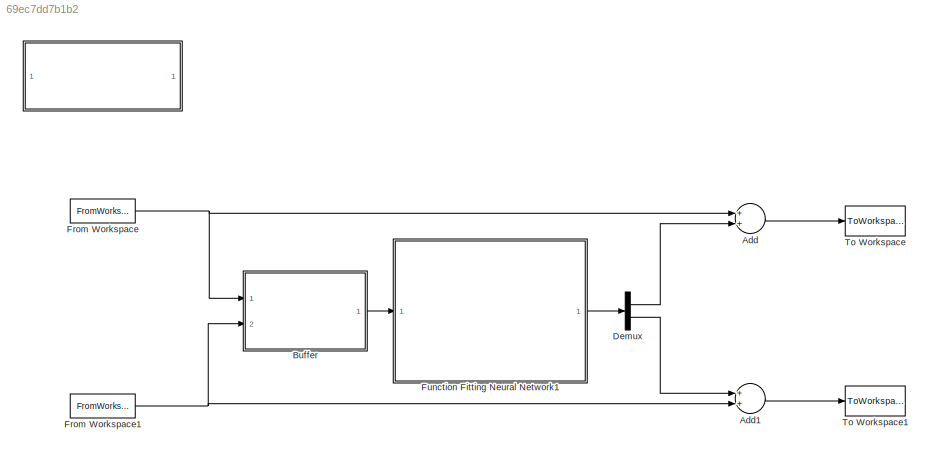
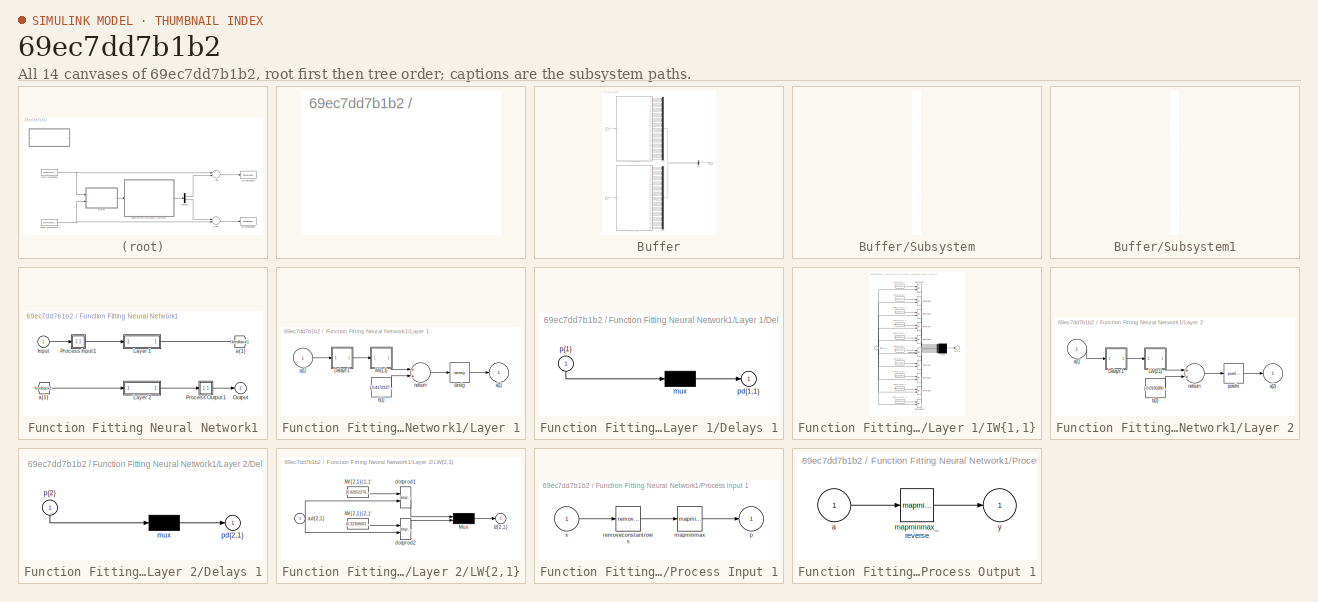
[diagram: thumbnail index - all 14 canvases of the model, root first then tree order]
MODEL slx_69ec7dd7b1b2
KIND model
CONFIG AbsTol = auto
CONFIG EnableMultiTasking = off
CONFIG FixedStep = 1
CONFIG MaxStep = auto
CONFIG MinStep = auto
CONFIG RelTol = 1e-3
CONFIG SampleTimeConstraint = Unconstrained
CONFIG Solver = FixedStepAuto
CONFIG SolverName = FixedStepAuto
CONFIG StartTime = 0.0
CONFIG StopFcn = %%\nscrsz = get(groot,'ScreenSize');\nfigure('Position',[40 scrsz(4)*0.1 scrsz(3)*0.8 scrsz(4)*0.8])\n\nlng_margin = (max(LOCATIONLongitude(indices))-min(LOCATIONLongitude(indices)))*0.01;\nlat_margin = (max(LOCATIONLatitude(indices))-min(LOCATIONLatitude(indices)))*0.01;\n\nlive_plot_title = ['Pedestrian Path Neural Network Prediction' newline ...\n    'Green Rectangle:Current Position, Cyan Rectangle:Fu...<+2148ch>
CONFIG StopTime = length(lat_y)
BLOCK [SubSystem]  
  OpenFcn = %%\n%receive the user input for the measurement file\nclear all;close all; %#ok<CLALL>\n[measurement_file, measurement_file_path] = uigetfile({'*.mat'},'Measurement File Selector');\nfilename = strcat(measurement_file_path,measurement_file); \nload(filename);\nt=0:1:length(lng_x)-1;\nsim_x = [t' lng_x];\nsim_y = [t' lat_y];
  Ports = []
  RequestExecContextInheritance = off
  Variant = off
BLOCK [Sum] Add
  InputSameDT = off
  OutDataTypeStr = Inherit: Inherit via internal rule
  Ports = [2, 1]
  SaturateOnIntegerOverflow = off
BLOCK [Sum] Add1
  InputSameDT = off
  OutDataTypeStr = Inherit: Inherit via internal rule
  Ports = [2, 1]
  SaturateOnIntegerOverflow = off
BLOCK [SubSystem] Buffer
  Ports = [2, 1]
  RequestExecContextInheritance = off
  Variant = off
BLOCK [Inport] Buffer/In_X
  IconDisplay = Port number
BLOCK [Inport] Buffer/In_Y
  IconDisplay = Port number
  Port = 2
BLOCK [Mux] Buffer/Mux
  DisplayOption = bar
  Inputs = 2
  Ports = [2, 1]
BLOCK [Mux] Buffer/Mux1
  DisplayOption = bar
  Inputs = 50
  Ports = [50, 1]
BLOCK [Mux] Buffer/Mux2
  DisplayOption = bar
  Inputs = 50
  Ports = [50, 1]
BLOCK [Outport] Buffer/Out_X
  IconDisplay = Port number
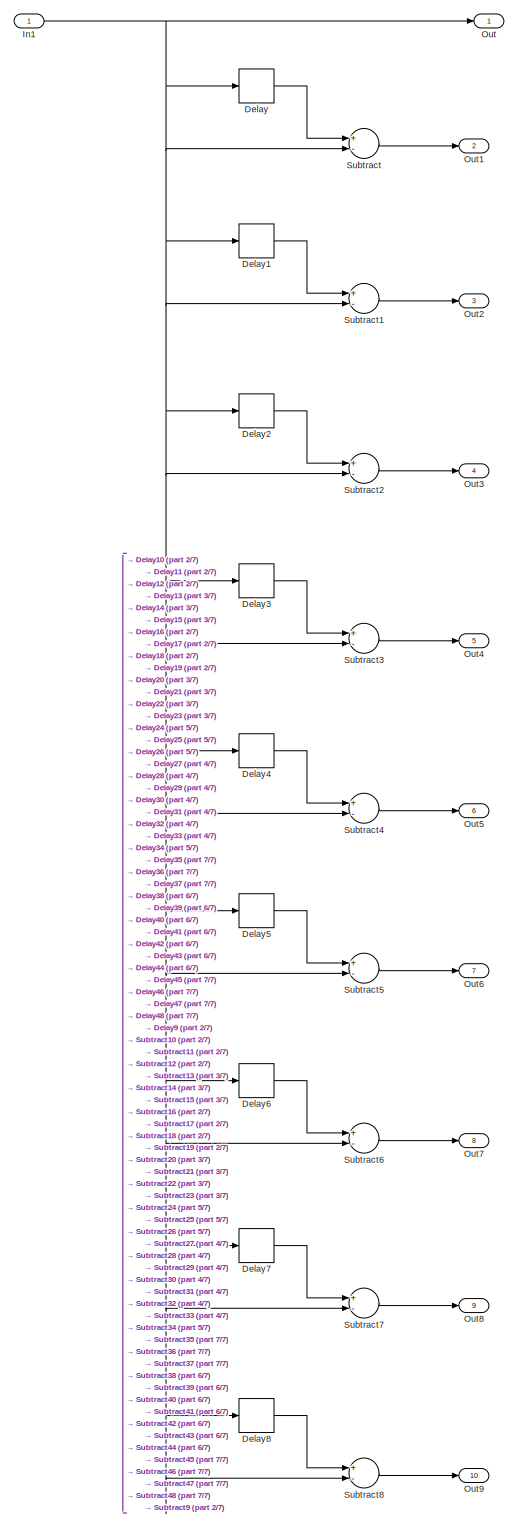
[diagram: Buffer/Subsystem - part 1/7, full width, top band]
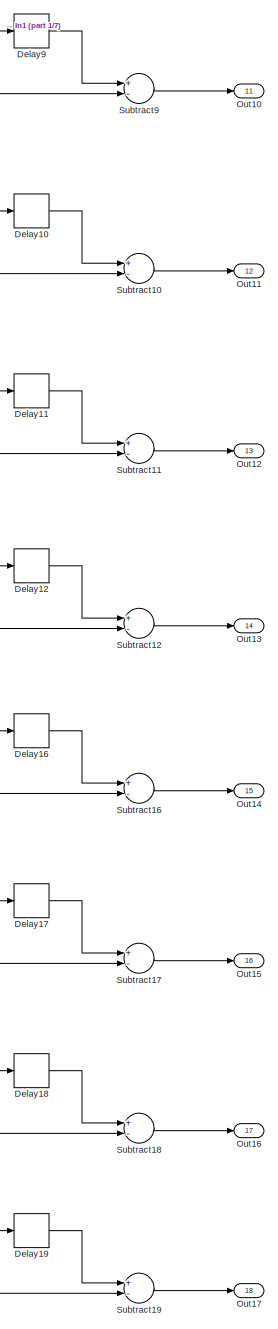
[diagram: Buffer/Subsystem - part 2/7, top right region]
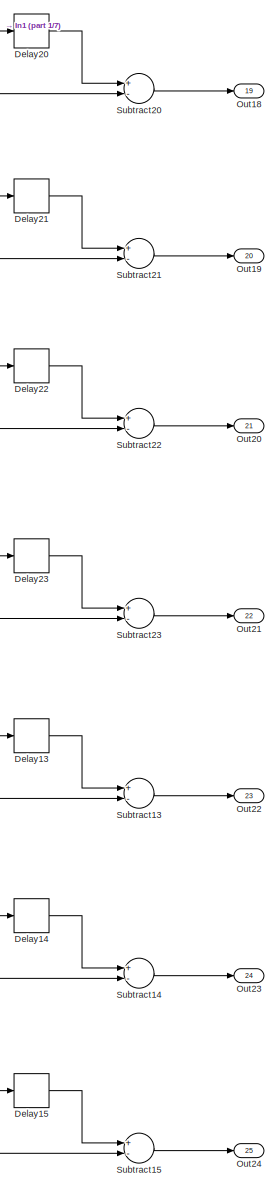
[diagram: Buffer/Subsystem - part 3/7, middle right region]
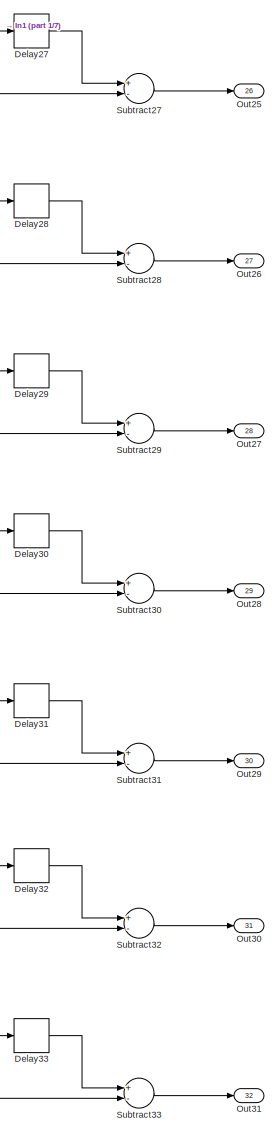
[diagram: Buffer/Subsystem - part 4/7, middle right region]
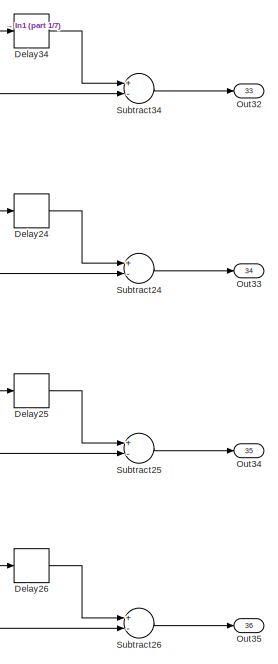
[diagram: Buffer/Subsystem - part 5/7, bottom right region]
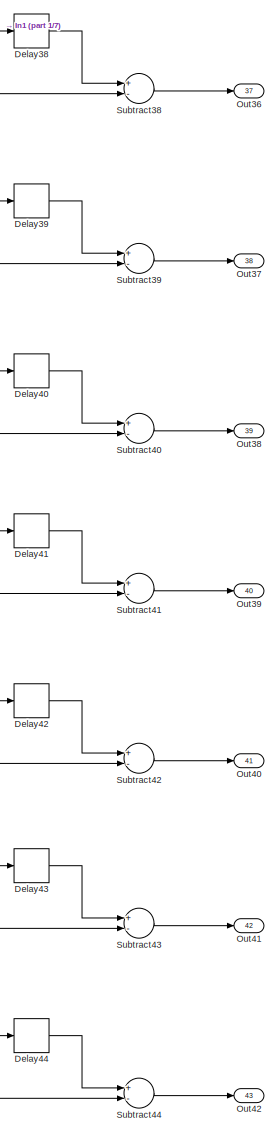
[diagram: Buffer/Subsystem - part 6/7, bottom right region]
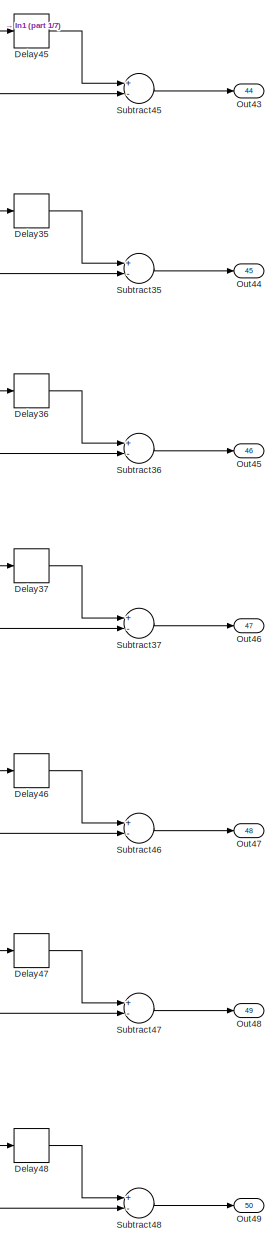
[diagram: Buffer/Subsystem - part 7/7, bottom right region]
BLOCK [SubSystem] Buffer/Subsystem
  Ports = [1, 50]
  RequestExecContextInheritance = off
  Variant = off
BLOCK [Delay] Buffer/Subsystem/Delay
  DelayLength = 1
  InputPortMap = u0
  Ports = [1, 1]
BLOCK [Delay] Buffer/Subsystem/Delay1
  InputPortMap = u0
  Ports = [1, 1]
BLOCK [Delay] Buffer/Subsystem/Delay10
  DelayLength = 11
  InputPortMap = u0
  Ports = [1, 1]
BLOCK [Delay] Buffer/Subsystem/Delay11
  DelayLength = 12
  InputPortMap = u0
  Ports = [1, 1]
BLOCK [Delay] Buffer/Subsystem/Delay12
  DelayLength = 13
  InputPortMap = u0
  Ports = [1, 1]
BLOCK [Delay] Buffer/Subsystem/Delay13
  DelayLength = 22
  InputPortMap = u0
  Ports = [1, 1]
BLOCK [Delay] Buffer/Subsystem/Delay14
  DelayLength = 23
  InputPortMap = u0
  Ports = [1, 1]
BLOCK [Delay] Buffer/Subsystem/Delay15
  DelayLength = 24
  InputPortMap = u0
  Ports = [1, 1]
BLOCK [Delay] Buffer/Subsystem/Delay16
  DelayLength = 14
  InputPortMap = u0
  Ports = [1, 1]
BLOCK [Delay] Buffer/Subsystem/Delay17
  DelayLength = 15
  InputPortMap = u0
  Ports = [1, 1]
BLOCK [Delay] Buffer/Subsystem/Delay18
  DelayLength = 16
  InputPortMap = u0
  Ports = [1, 1]
BLOCK [Delay] Buffer/Subsystem/Delay19
  DelayLength = 17
  InputPortMap = u0
  Ports = [1, 1]
BLOCK [Delay] Buffer/Subsystem/Delay2
  DelayLength = 3
  InputPortMap = u0
  Ports = [1, 1]
BLOCK [Delay] Buffer/Subsystem/Delay20
  DelayLength = 18
  InputPortMap = u0
  Ports = [1, 1]
BLOCK [Delay] Buffer/Subsystem/Delay21
  DelayLength = 19
  InputPortMap = u0
  Ports = [1, 1]
BLOCK [Delay] Buffer/Subsystem/Delay22
  DelayLength = 20
  InputPortMap = u0
  Ports = [1, 1]
BLOCK [Delay] Buffer/Subsystem/Delay23
  DelayLength = 21
  InputPortMap = u0
  Ports = [1, 1]
BLOCK [Delay] Buffer/Subsystem/Delay24
  DelayLength = 33
  InputPortMap = u0
  Ports = [1, 1]
BLOCK [Delay] Buffer/Subsystem/Delay25
  DelayLength = 34
  InputPortMap = u0
  Ports = [1, 1]
BLOCK [Delay] Buffer/Subsystem/Delay26
  DelayLength = 35
  InputPortMap = u0
  Ports = [1, 1]
BLOCK [Delay] Buffer/Subsystem/Delay27
  DelayLength = 25
  InputPortMap = u0
  Ports = [1, 1]
BLOCK [Delay] Buffer/Subsystem/Delay28
  DelayLength = 26
  InputPortMap = u0
  Ports = [1, 1]
BLOCK [Delay] Buffer/Subsystem/Delay29
  DelayLength = 27
  InputPortMap = u0
  Ports = [1, 1]
BLOCK [Delay] Buffer/Subsystem/Delay3
  DelayLength = 4
  InputPortMap = u0
  Ports = [1, 1]
BLOCK [Delay] Buffer/Subsystem/Delay30
  DelayLength = 28
  InputPortMap = u0
  Ports = [1, 1]
BLOCK [Delay] Buffer/Subsystem/Delay31
  DelayLength = 29
  InputPortMap = u0
  Ports = [1, 1]
BLOCK [Delay] Buffer/Subsystem/Delay32
  DelayLength = 30
  InputPortMap = u0
  Ports = [1, 1]
BLOCK [Delay] Buffer/Subsystem/Delay33
  DelayLength = 31
  InputPortMap = u0
  Ports = [1, 1]
BLOCK [Delay] Buffer/Subsystem/Delay34
  DelayLength = 32
  InputPortMap = u0
  Ports = [1, 1]
BLOCK [Delay] Buffer/Subsystem/Delay35
  DelayLength = 44
  InputPortMap = u0
  Ports = [1, 1]
BLOCK [Delay] Buffer/Subsystem/Delay36
  DelayLength = 45
  InputPortMap = u0
  Ports = [1, 1]
BLOCK [Delay] Buffer/Subsystem/Delay37
  DelayLength = 46
  InputPortMap = u0
  Ports = [1, 1]
BLOCK [Delay] Buffer/Subsystem/Delay38
  DelayLength = 36
  InputPortMap = u0
  Ports = [1, 1]
BLOCK [Delay] Buffer/Subsystem/Delay39
  DelayLength = 37
  InputPortMap = u0
  Ports = [1, 1]
BLOCK [Delay] Buffer/Subsystem/Delay4
  DelayLength = 5
  InputPortMap = u0
  Ports = [1, 1]
BLOCK [Delay] Buffer/Subsystem/Delay40
  DelayLength = 38
  InputPortMap = u0
  Ports = [1, 1]
BLOCK [Delay] Buffer/Subsystem/Delay41
  DelayLength = 39
  InputPortMap = u0
  Ports = [1, 1]
BLOCK [Delay] Buffer/Subsystem/Delay42
  DelayLength = 40
  InputPortMap = u0
  Ports = [1, 1]
BLOCK [Delay] Buffer/Subsystem/Delay43
  DelayLength = 41
  InputPortMap = u0
  Ports = [1, 1]
BLOCK [Delay] Buffer/Subsystem/Delay44
  DelayLength = 42
  InputPortMap = u0
  Ports = [1, 1]
BLOCK [Delay] Buffer/Subsystem/Delay45
  DelayLength = 43
  InputPortMap = u0
  Ports = [1, 1]
BLOCK [Delay] Buffer/Subsystem/Delay46
  DelayLength = 47
  InputPortMap = u0
  Ports = [1, 1]
BLOCK [Delay] Buffer/Subsystem/Delay47
  DelayLength = 48
  InputPortMap = u0
  Ports = [1, 1]
BLOCK [Delay] Buffer/Subsystem/Delay48
  DelayLength = 49
  InputPortMap = u0
  Ports = [1, 1]
BLOCK [Delay] Buffer/Subsystem/Delay5
  DelayLength = 6
  InputPortMap = u0
  Ports = [1, 1]
BLOCK [Delay] Buffer/Subsystem/Delay6
  DelayLength = 7
  InputPortMap = u0
  Ports = [1, 1]
BLOCK [Delay] Buffer/Subsystem/Delay7
  DelayLength = 8
  InputPortMap = u0
  Ports = [1, 1]
BLOCK [Delay] Buffer/Subsystem/Delay8
  DelayLength = 9
  InputPortMap = u0
  Ports = [1, 1]
BLOCK [Delay] Buffer/Subsystem/Delay9
  DelayLength = 10
  InputPortMap = u0
  Ports = [1, 1]
BLOCK [Inport] Buffer/Subsystem/In1
  IconDisplay = Port number
BLOCK [Outport] Buffer/Subsystem/Out
  IconDisplay = Port number
BLOCK [Outport] Buffer/Subsystem/Out1
  IconDisplay = Port number
  Port = 2
BLOCK [Outport] Buffer/Subsystem/Out10
  IconDisplay = Port number
  Port = 11
BLOCK [Outport] Buffer/Subsystem/Out11
  IconDisplay = Port number
  Port = 12
BLOCK [Outport] Buffer/Subsystem/Out12
  IconDisplay = Port number
  Port = 13
BLOCK [Outport] Buffer/Subsystem/Out13
  IconDisplay = Port number
  Port = 14
BLOCK [Outport] Buffer/Subsystem/Out14
  IconDisplay = Port number
  Port = 15
BLOCK [Outport] Buffer/Subsystem/Out15
  IconDisplay = Port number
  Port = 16
BLOCK [Outport] Buffer/Subsystem/Out16
  IconDisplay = Port number
  Port = 17
BLOCK [Outport] Buffer/Subsystem/Out17
  IconDisplay = Port number
  Port = 18
BLOCK [Outport] Buffer/Subsystem/Out18
  IconDisplay = Port number
  Port = 19
BLOCK [Outport] Buffer/Subsystem/Out19
  IconDisplay = Port number
  Port = 20
BLOCK [Outport] Buffer/Subsystem/Out2
  IconDisplay = Port number
  Port = 3
BLOCK [Outport] Buffer/Subsystem/Out20
  IconDisplay = Port number
  Port = 21
BLOCK [Outport] Buffer/Subsystem/Out21
  IconDisplay = Port number
  Port = 22
BLOCK [Outport] Buffer/Subsystem/Out22
  IconDisplay = Port number
  Port = 23
BLOCK [Outport] Buffer/Subsystem/Out23
  IconDisplay = Port number
  Port = 24
BLOCK [Outport] Buffer/Subsystem/Out24
  IconDisplay = Port number
  Port = 25
BLOCK [Outport] Buffer/Subsystem/Out25
  IconDisplay = Port number
  Port = 26
BLOCK [Outport] Buffer/Subsystem/Out26
  IconDisplay = Port number
  Port = 27
BLOCK [Outport] Buffer/Subsystem/Out27
  IconDisplay = Port number
  Port = 28
BLOCK [Outport] Buffer/Subsystem/Out28
  IconDisplay = Port number
  Port = 29
BLOCK [Outport] Buffer/Subsystem/Out29
  IconDisplay = Port number
  Port = 30
BLOCK [Outport] Buffer/Subsystem/Out3
  IconDisplay = Port number
  Port = 4
BLOCK [Outport] Buffer/Subsystem/Out30
  IconDisplay = Port number
  Port = 31
BLOCK [Outport] Buffer/Subsystem/Out31
  IconDisplay = Port number
  Port = 32
BLOCK [Outport] Buffer/Subsystem/Out32
  IconDisplay = Port number
  Port = 33
BLOCK [Outport] Buffer/Subsystem/Out33
  IconDisplay = Port number
  Port = 34
BLOCK [Outport] Buffer/Subsystem/Out34
  IconDisplay = Port number
  Port = 35
BLOCK [Outport] Buffer/Subsystem/Out35
  IconDisplay = Port number
  Port = 36
BLOCK [Outport] Buffer/Subsystem/Out36
  IconDisplay = Port number
  Port = 37
BLOCK [Outport] Buffer/Subsystem/Out37
  IconDisplay = Port number
  Port = 38
BLOCK [Outport] Buffer/Subsystem/Out38
  IconDisplay = Port number
  Port = 39
BLOCK [Outport] Buffer/Subsystem/Out39
  IconDisplay = Port number
  Port = 40
BLOCK [Outport] Buffer/Subsystem/Out4
  IconDisplay = Port number
  Port = 5
BLOCK [Outport] Buffer/Subsystem/Out40
  IconDisplay = Port number
  Port = 41
BLOCK [Outport] Buffer/Subsystem/Out41
  IconDisplay = Port number
  Port = 42
BLOCK [Outport] Buffer/Subsystem/Out42
  IconDisplay = Port number
  Port = 43
BLOCK [Outport] Buffer/Subsystem/Out43
  IconDisplay = Port number
  Port = 44
BLOCK [Outport] Buffer/Subsystem/Out44
  IconDisplay = Port number
  Port = 45
BLOCK [Outport] Buffer/Subsystem/Out45
  IconDisplay = Port number
  Port = 46
BLOCK [Outport] Buffer/Subsystem/Out46
  IconDisplay = Port number
  Port = 47
BLOCK [Outport] Buffer/Subsystem/Out47
  IconDisplay = Port number
  Port = 48
BLOCK [Outport] Buffer/Subsystem/Out48
  IconDisplay = Port number
  Port = 49
BLOCK [Outport] Buffer/Subsystem/Out49
  IconDisplay = Port number
  Port = 50
BLOCK [Outport] Buffer/Subsystem/Out5
  IconDisplay = Port number
  Port = 6
BLOCK [Outport] Buffer/Subsystem/Out6
  IconDisplay = Port number
  Port = 7
BLOCK [Outport] Buffer/Subsystem/Out7
  IconDisplay = Port number
  Port = 8
BLOCK [Outport] Buffer/Subsystem/Out8
  IconDisplay = Port number
  Port = 9
BLOCK [Outport] Buffer/Subsystem/Out9
  IconDisplay = Port number
  Port = 10
BLOCK [Sum] Buffer/Subsystem/Subtract
  InputSameDT = off
  Inputs = +-
  OutDataTypeStr = Inherit: Inherit via internal rule
  Ports = [2, 1]
  SaturateOnIntegerOverflow = off
BLOCK [Sum] Buffer/Subsystem/Subtract1
  InputSameDT = off
  Inputs = +-
  OutDataTypeStr = Inherit: Inherit via internal rule
  Ports = [2, 1]
  SaturateOnIntegerOverflow = off
BLOCK [Sum] Buffer/Subsystem/Subtract10
  InputSameDT = off
  Inputs = +-
  OutDataTypeStr = Inherit: Inherit via internal rule
  Ports = [2, 1]
  SaturateOnIntegerOverflow = off
BLOCK [Sum] Buffer/Subsystem/Subtract11
  InputSameDT = off
  Inputs = +-
  OutDataTypeStr = Inherit: Inherit via internal rule
  Ports = [2, 1]
  SaturateOnIntegerOverflow = off
BLOCK [Sum] Buffer/Subsystem/Subtract12
  InputSameDT = off
  Inputs = +-
  OutDataTypeStr = Inherit: Inherit via internal rule
  Ports = [2, 1]
  SaturateOnIntegerOverflow = off
BLOCK [Sum] Buffer/Subsystem/Subtract13
  InputSameDT = off
  Inputs = +-
  OutDataTypeStr = Inherit: Inherit via internal rule
  Ports = [2, 1]
  SaturateOnIntegerOverflow = off
BLOCK [Sum] Buffer/Subsystem/Subtract14
  InputSameDT = off
  Inputs = +-
  OutDataTypeStr = Inherit: Inherit via internal rule
  Ports = [2, 1]
  SaturateOnIntegerOverflow = off
BLOCK [Sum] Buffer/Subsystem/Subtract15
  InputSameDT = off
  Inputs = +-
  OutDataTypeStr = Inherit: Inherit via internal rule
  Ports = [2, 1]
  SaturateOnIntegerOverflow = off
BLOCK [Sum] Buffer/Subsystem/Subtract16
  InputSameDT = off
  Inputs = +-
  OutDataTypeStr = Inherit: Inherit via internal rule
  Ports = [2, 1]
  SaturateOnIntegerOverflow = off
BLOCK [Sum] Buffer/Subsystem/Subtract17
  InputSameDT = off
  Inputs = +-
  OutDataTypeStr = Inherit: Inherit via internal rule
  Ports = [2, 1]
  SaturateOnIntegerOverflow = off
BLOCK [Sum] Buffer/Subsystem/Subtract18
  InputSameDT = off
  Inputs = +-
  OutDataTypeStr = Inherit: Inherit via internal rule
  Ports = [2, 1]
  SaturateOnIntegerOverflow = off
BLOCK [Sum] Buffer/Subsystem/Subtract19
  InputSameDT = off
  Inputs = +-
  OutDataTypeStr = Inherit: Inherit via internal rule
  Ports = [2, 1]
  SaturateOnIntegerOverflow = off
BLOCK [Sum] Buffer/Subsystem/Subtract2
  InputSameDT = off
  Inputs = +-
  OutDataTypeStr = Inherit: Inherit via internal rule
  Ports = [2, 1]
  SaturateOnIntegerOverflow = off
BLOCK [Sum] Buffer/Subsystem/Subtract20
  InputSameDT = off
  Inputs = +-
  OutDataTypeStr = Inherit: Inherit via internal rule
  Ports = [2, 1]
  SaturateOnIntegerOverflow = off
BLOCK [Sum] Buffer/Subsystem/Subtract21
  InputSameDT = off
  Inputs = +-
  OutDataTypeStr = Inherit: Inherit via internal rule
  Ports = [2, 1]
  SaturateOnIntegerOverflow = off
BLOCK [Sum] Buffer/Subsystem/Subtract22
  InputSameDT = off
  Inputs = +-
  OutDataTypeStr = Inherit: Inherit via internal rule
  Ports = [2, 1]
  SaturateOnIntegerOverflow = off
BLOCK [Sum] Buffer/Subsystem/Subtract23
  InputSameDT = off
  Inputs = +-
  OutDataTypeStr = Inherit: Inherit via internal rule
  Ports = [2, 1]
  SaturateOnIntegerOverflow = off
BLOCK [Sum] Buffer/Subsystem/Subtract24
  InputSameDT = off
  Inputs = +-
  OutDataTypeStr = Inherit: Inherit via internal rule
  Ports = [2, 1]
  SaturateOnIntegerOverflow = off
BLOCK [Sum] Buffer/Subsystem/Subtract25
  InputSameDT = off
  Inputs = +-
  OutDataTypeStr = Inherit: Inherit via internal rule
  Ports = [2, 1]
  SaturateOnIntegerOverflow = off
BLOCK [Sum] Buffer/Subsystem/Subtract26
  InputSameDT = off
  Inputs = +-
  OutDataTypeStr = Inherit: Inherit via internal rule
  Ports = [2, 1]
  SaturateOnIntegerOverflow = off
BLOCK [Sum] Buffer/Subsystem/Subtract27
  InputSameDT = off
  Inputs = +-
  OutDataTypeStr = Inherit: Inherit via internal rule
  Ports = [2, 1]
  SaturateOnIntegerOverflow = off
BLOCK [Sum] Buffer/Subsystem/Subtract28
  InputSameDT = off
  Inputs = +-
  OutDataTypeStr = Inherit: Inherit via internal rule
  Ports = [2, 1]
  SaturateOnIntegerOverflow = off
BLOCK [Sum] Buffer/Subsystem/Subtract29
  InputSameDT = off
  Inputs = +-
  OutDataTypeStr = Inherit: Inherit via internal rule
  Ports = [2, 1]
  SaturateOnIntegerOverflow = off
BLOCK [Sum] Buffer/Subsystem/Subtract3
  InputSameDT = off
  Inputs = +-
  OutDataTypeStr = Inherit: Inherit via internal rule
  Ports = [2, 1]
  SaturateOnIntegerOverflow = off
BLOCK [Sum] Buffer/Subsystem/Subtract30
  InputSameDT = off
  Inputs = +-
  OutDataTypeStr = Inherit: Inherit via internal rule
  Ports = [2, 1]
  SaturateOnIntegerOverflow = off
BLOCK [Sum] Buffer/Subsystem/Subtract31
  InputSameDT = off
  Inputs = +-
  OutDataTypeStr = Inherit: Inherit via internal rule
  Ports = [2, 1]
  SaturateOnIntegerOverflow = off
BLOCK [Sum] Buffer/Subsystem/Subtract32
  InputSameDT = off
  Inputs = +-
  OutDataTypeStr = Inherit: Inherit via internal rule
  Ports = [2, 1]
  SaturateOnIntegerOverflow = off
BLOCK [Sum] Buffer/Subsystem/Subtract33
  InputSameDT = off
  Inputs = +-
  OutDataTypeStr = Inherit: Inherit via internal rule
  Ports = [2, 1]
  SaturateOnIntegerOverflow = off
BLOCK [Sum] Buffer/Subsystem/Subtract34
  InputSameDT = off
  Inputs = +-
  OutDataTypeStr = Inherit: Inherit via internal rule
  Ports = [2, 1]
  SaturateOnIntegerOverflow = off
BLOCK [Sum] Buffer/Subsystem/Subtract35
  InputSameDT = off
  Inputs = +-
  OutDataTypeStr = Inherit: Inherit via internal rule
  Ports = [2, 1]
  SaturateOnIntegerOverflow = off
BLOCK [Sum] Buffer/Subsystem/Subtract36
  InputSameDT = off
  Inputs = +-
  OutDataTypeStr = Inherit: Inherit via internal rule
  Ports = [2, 1]
  SaturateOnIntegerOverflow = off
BLOCK [Sum] Buffer/Subsystem/Subtract37
  InputSameDT = off
  Inputs = +-
  OutDataTypeStr = Inherit: Inherit via internal rule
  Ports = [2, 1]
  SaturateOnIntegerOverflow = off
BLOCK [Sum] Buffer/Subsystem/Subtract38
  InputSameDT = off
  Inputs = +-
  OutDataTypeStr = Inherit: Inherit via internal rule
  Ports = [2, 1]
  SaturateOnIntegerOverflow = off
BLOCK [Sum] Buffer/Subsystem/Subtract39
  InputSameDT = off
  Inputs = +-
  OutDataTypeStr = Inherit: Inherit via internal rule
  Ports = [2, 1]
  SaturateOnIntegerOverflow = off
BLOCK [Sum] Buffer/Subsystem/Subtract4
  InputSameDT = off
  Inputs = +-
  OutDataTypeStr = Inherit: Inherit via internal rule
  Ports = [2, 1]
  SaturateOnIntegerOverflow = off
BLOCK [Sum] Buffer/Subsystem/Subtract40
  InputSameDT = off
  Inputs = +-
  OutDataTypeStr = Inherit: Inherit via internal rule
  Ports = [2, 1]
  SaturateOnIntegerOverflow = off
BLOCK [Sum] Buffer/Subsystem/Subtract41
  InputSameDT = off
  Inputs = +-
  OutDataTypeStr = Inherit: Inherit via internal rule
  Ports = [2, 1]
  SaturateOnIntegerOverflow = off
BLOCK [Sum] Buffer/Subsystem/Subtract42
  InputSameDT = off
  Inputs = +-
  OutDataTypeStr = Inherit: Inherit via internal rule
  Ports = [2, 1]
  SaturateOnIntegerOverflow = off
BLOCK [Sum] Buffer/Subsystem/Subtract43
  InputSameDT = off
  Inputs = +-
  OutDataTypeStr = Inherit: Inherit via internal rule
  Ports = [2, 1]
  SaturateOnIntegerOverflow = off
BLOCK [Sum] Buffer/Subsystem/Subtract44
  InputSameDT = off
  Inputs = +-
  OutDataTypeStr = Inherit: Inherit via internal rule
  Ports = [2, 1]
  SaturateOnIntegerOverflow = off
BLOCK [Sum] Buffer/Subsystem/Subtract45
  InputSameDT = off
  Inputs = +-
  OutDataTypeStr = Inherit: Inherit via internal rule
  Ports = [2, 1]
  SaturateOnIntegerOverflow = off
BLOCK [Sum] Buffer/Subsystem/Subtract46
  InputSameDT = off
  Inputs = +-
  OutDataTypeStr = Inherit: Inherit via internal rule
  Ports = [2, 1]
  SaturateOnIntegerOverflow = off
BLOCK [Sum] Buffer/Subsystem/Subtract47
  InputSameDT = off
  Inputs = +-
  OutDataTypeStr = Inherit: Inherit via internal rule
  Ports = [2, 1]
  SaturateOnIntegerOverflow = off
BLOCK [Sum] Buffer/Subsystem/Subtract48
  InputSameDT = off
  Inputs = +-
  OutDataTypeStr = Inherit: Inherit via internal rule
  Ports = [2, 1]
  SaturateOnIntegerOverflow = off
BLOCK [Sum] Buffer/Subsystem/Subtract5
  InputSameDT = off
  Inputs = +-
  OutDataTypeStr = Inherit: Inherit via internal rule
  Ports = [2, 1]
  SaturateOnIntegerOverflow = off
BLOCK [Sum] Buffer/Subsystem/Subtract6
  InputSameDT = off
  Inputs = +-
  OutDataTypeStr = Inherit: Inherit via internal rule
  Ports = [2, 1]
  SaturateOnIntegerOverflow = off
BLOCK [Sum] Buffer/Subsystem/Subtract7
  InputSameDT = off
  Inputs = +-
  OutDataTypeStr = Inherit: Inherit via internal rule
  Ports = [2, 1]
  SaturateOnIntegerOverflow = off
BLOCK [Sum] Buffer/Subsystem/Subtract8
  InputSameDT = off
  Inputs = +-
  OutDataTypeStr = Inherit: Inherit via internal rule
  Ports = [2, 1]
  SaturateOnIntegerOverflow = off
BLOCK [Sum] Buffer/Subsystem/Subtract9
  InputSameDT = off
  Inputs = +-
  OutDataTypeStr = Inherit: Inherit via internal rule
  Ports = [2, 1]
  SaturateOnIntegerOverflow = off
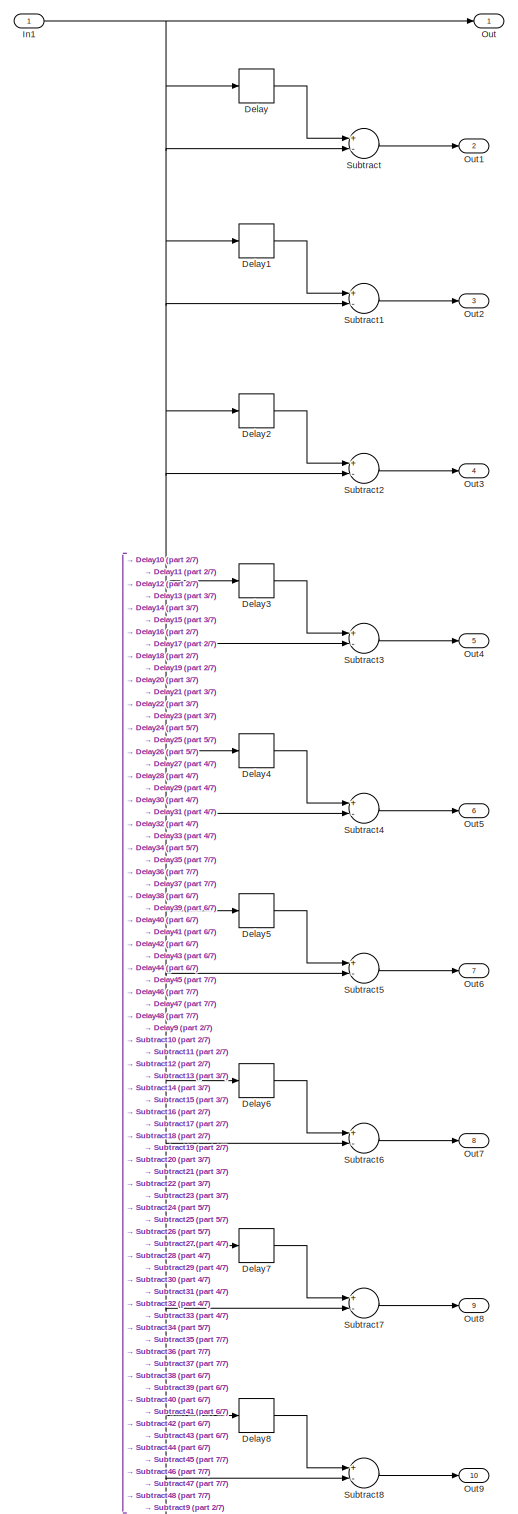
[diagram: Buffer/Subsystem1 - part 1/7, full width, top band]
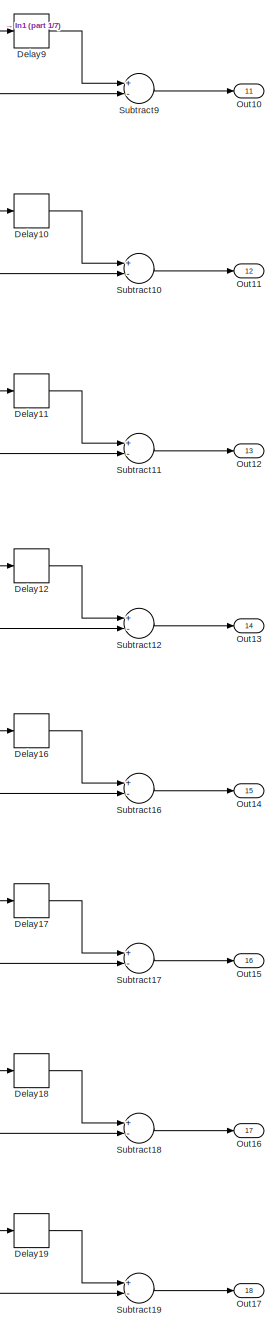
[diagram: Buffer/Subsystem1 - part 2/7, top right region]
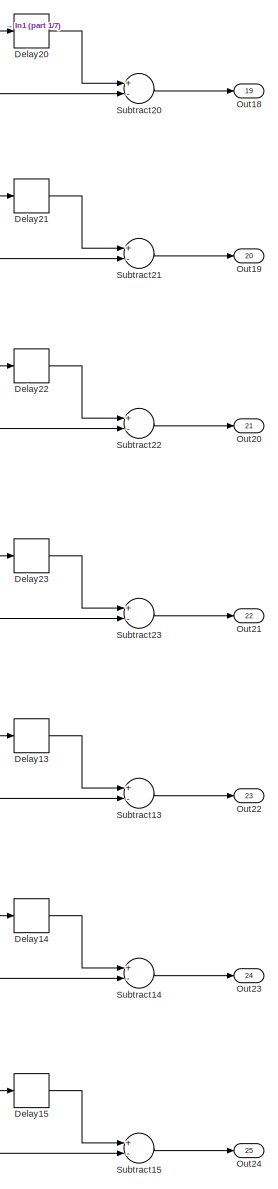
[diagram: Buffer/Subsystem1 - part 3/7, middle right region]
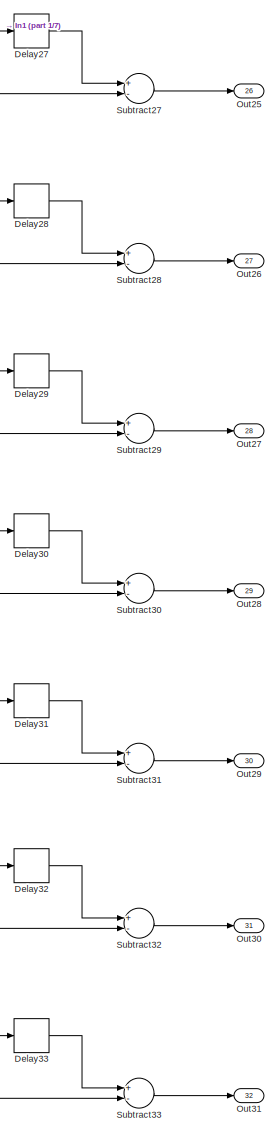
[diagram: Buffer/Subsystem1 - part 4/7, middle right region]
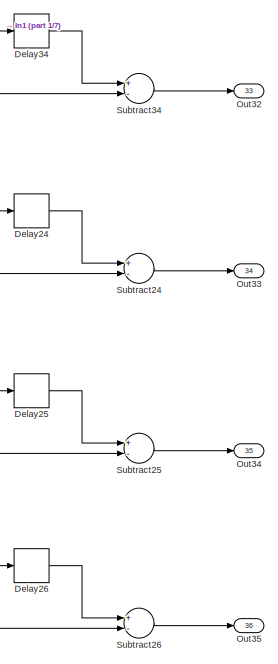
[diagram: Buffer/Subsystem1 - part 5/7, bottom right region]
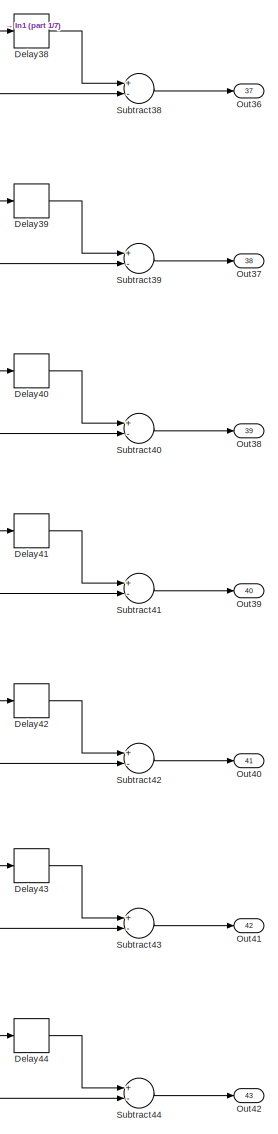
[diagram: Buffer/Subsystem1 - part 6/7, bottom right region]
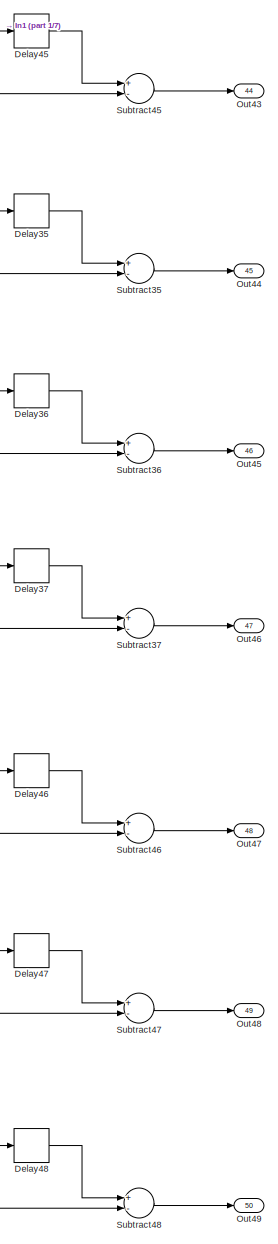
[diagram: Buffer/Subsystem1 - part 7/7, bottom right region]
BLOCK [SubSystem] Buffer/Subsystem1
  Ports = [1, 50]
  RequestExecContextInheritance = off
  Variant = off
BLOCK [Delay] Buffer/Subsystem1/Delay
  DelayLength = 1
  InputPortMap = u0
  Ports = [1, 1]
BLOCK [Delay] Buffer/Subsystem1/Delay1
  InputPortMap = u0
  Ports = [1, 1]
BLOCK [Delay] Buffer/Subsystem1/Delay10
  DelayLength = 11
  InputPortMap = u0
  Ports = [1, 1]
BLOCK [Delay] Buffer/Subsystem1/Delay11
  DelayLength = 12
  InputPortMap = u0
  Ports = [1, 1]
BLOCK [Delay] Buffer/Subsystem1/Delay12
  DelayLength = 13
  InputPortMap = u0
  Ports = [1, 1]
BLOCK [Delay] Buffer/Subsystem1/Delay13
  DelayLength = 22
  InputPortMap = u0
  Ports = [1, 1]
BLOCK [Delay] Buffer/Subsystem1/Delay14
  DelayLength = 23
  InputPortMap = u0
  Ports = [1, 1]
BLOCK [Delay] Buffer/Subsystem1/Delay15
  DelayLength = 24
  InputPortMap = u0
  Ports = [1, 1]
BLOCK [Delay] Buffer/Subsystem1/Delay16
  DelayLength = 14
  InputPortMap = u0
  Ports = [1, 1]
BLOCK [Delay] Buffer/Subsystem1/Delay17
  DelayLength = 15
  InputPortMap = u0
  Ports = [1, 1]
BLOCK [Delay] Buffer/Subsystem1/Delay18
  DelayLength = 16
  InputPortMap = u0
  Ports = [1, 1]
BLOCK [Delay] Buffer/Subsystem1/Delay19
  DelayLength = 17
  InputPortMap = u0
  Ports = [1, 1]
BLOCK [Delay] Buffer/Subsystem1/Delay2
  DelayLength = 3
  InputPortMap = u0
  Ports = [1, 1]
BLOCK [Delay] Buffer/Subsystem1/Delay20
  DelayLength = 18
  InputPortMap = u0
  Ports = [1, 1]
BLOCK [Delay] Buffer/Subsystem1/Delay21
  DelayLength = 19
  InputPortMap = u0
  Ports = [1, 1]
BLOCK [Delay] Buffer/Subsystem1/Delay22
  DelayLength = 20
  InputPortMap = u0
  Ports = [1, 1]
BLOCK [Delay] Buffer/Subsystem1/Delay23
  DelayLength = 21
  InputPortMap = u0
  Ports = [1, 1]
BLOCK [Delay] Buffer/Subsystem1/Delay24
  DelayLength = 33
  InputPortMap = u0
  Ports = [1, 1]
BLOCK [Delay] Buffer/Subsystem1/Delay25
  DelayLength = 34
  InputPortMap = u0
  Ports = [1, 1]
BLOCK [Delay] Buffer/Subsystem1/Delay26
  DelayLength = 35
  InputPortMap = u0
  Ports = [1, 1]
BLOCK [Delay] Buffer/Subsystem1/Delay27
  DelayLength = 25
  InputPortMap = u0
  Ports = [1, 1]
BLOCK [Delay] Buffer/Subsystem1/Delay28
  DelayLength = 26
  InputPortMap = u0
  Ports = [1, 1]
BLOCK [Delay] Buffer/Subsystem1/Delay29
  DelayLength = 27
  InputPortMap = u0
  Ports = [1, 1]
BLOCK [Delay] Buffer/Subsystem1/Delay3
  DelayLength = 4
  InputPortMap = u0
  Ports = [1, 1]
BLOCK [Delay] Buffer/Subsystem1/Delay30
  DelayLength = 28
  InputPortMap = u0
  Ports = [1, 1]
BLOCK [Delay] Buffer/Subsystem1/Delay31
  DelayLength = 29
  InputPortMap = u0
  Ports = [1, 1]
BLOCK [Delay] Buffer/Subsystem1/Delay32
  DelayLength = 30
  InputPortMap = u0
  Ports = [1, 1]
BLOCK [Delay] Buffer/Subsystem1/Delay33
  DelayLength = 31
  InputPortMap = u0
  Ports = [1, 1]
BLOCK [Delay] Buffer/Subsystem1/Delay34
  DelayLength = 32
  InputPortMap = u0
  Ports = [1, 1]
BLOCK [Delay] Buffer/Subsystem1/Delay35
  DelayLength = 44
  InputPortMap = u0
  Ports = [1, 1]
BLOCK [Delay] Buffer/Subsystem1/Delay36
  DelayLength = 45
  InputPortMap = u0
  Ports = [1, 1]
BLOCK [Delay] Buffer/Subsystem1/Delay37
  DelayLength = 46
  InputPortMap = u0
  Ports = [1, 1]
BLOCK [Delay] Buffer/Subsystem1/Delay38
  DelayLength = 36
  InputPortMap = u0
  Ports = [1, 1]
BLOCK [Delay] Buffer/Subsystem1/Delay39
  DelayLength = 37
  InputPortMap = u0
  Ports = [1, 1]
BLOCK [Delay] Buffer/Subsystem1/Delay4
  DelayLength = 5
  InputPortMap = u0
  Ports = [1, 1]
BLOCK [Delay] Buffer/Subsystem1/Delay40
  DelayLength = 38
  InputPortMap = u0
  Ports = [1, 1]
BLOCK [Delay] Buffer/Subsystem1/Delay41
  DelayLength = 39
  InputPortMap = u0
  Ports = [1, 1]
BLOCK [Delay] Buffer/Subsystem1/Delay42
  DelayLength = 40
  InputPortMap = u0
  Ports = [1, 1]
BLOCK [Delay] Buffer/Subsystem1/Delay43
  DelayLength = 41
  InputPortMap = u0
  Ports = [1, 1]
BLOCK [Delay] Buffer/Subsystem1/Delay44
  DelayLength = 42
  InputPortMap = u0
  Ports = [1, 1]
BLOCK [Delay] Buffer/Subsystem1/Delay45
  DelayLength = 43
  InputPortMap = u0
  Ports = [1, 1]
BLOCK [Delay] Buffer/Subsystem1/Delay46
  DelayLength = 47
  InputPortMap = u0
  Ports = [1, 1]
BLOCK [Delay] Buffer/Subsystem1/Delay47
  DelayLength = 48
  InputPortMap = u0
  Ports = [1, 1]
BLOCK [Delay] Buffer/Subsystem1/Delay48
  DelayLength = 49
  InputPortMap = u0
  Ports = [1, 1]
BLOCK [Delay] Buffer/Subsystem1/Delay5
  DelayLength = 6
  InputPortMap = u0
  Ports = [1, 1]
BLOCK [Delay] Buffer/Subsystem1/Delay6
  DelayLength = 7
  InputPortMap = u0
  Ports = [1, 1]
BLOCK [Delay] Buffer/Subsystem1/Delay7
  DelayLength = 8
  InputPortMap = u0
  Ports = [1, 1]
BLOCK [Delay] Buffer/Subsystem1/Delay8
  DelayLength = 9
  InputPortMap = u0
  Ports = [1, 1]
BLOCK [Delay] Buffer/Subsystem1/Delay9
  DelayLength = 10
  InputPortMap = u0
  Ports = [1, 1]
BLOCK [Inport] Buffer/Subsystem1/In1
  IconDisplay = Port number
BLOCK [Outport] Buffer/Subsystem1/Out
  IconDisplay = Port number
BLOCK [Outport] Buffer/Subsystem1/Out1
  IconDisplay = Port number
  Port = 2
BLOCK [Outport] Buffer/Subsystem1/Out10
  IconDisplay = Port number
  Port = 11
BLOCK [Outport] Buffer/Subsystem1/Out11
  IconDisplay = Port number
  Port = 12
BLOCK [Outport] Buffer/Subsystem1/Out12
  IconDisplay = Port number
  Port = 13
BLOCK [Outport] Buffer/Subsystem1/Out13
  IconDisplay = Port number
  Port = 14
BLOCK [Outport] Buffer/Subsystem1/Out14
  IconDisplay = Port number
  Port = 15
BLOCK [Outport] Buffer/Subsystem1/Out15
  IconDisplay = Port number
  Port = 16
BLOCK [Outport] Buffer/Subsystem1/Out16
  IconDisplay = Port number
  Port = 17
BLOCK [Outport] Buffer/Subsystem1/Out17
  IconDisplay = Port number
  Port = 18
BLOCK [Outport] Buffer/Subsystem1/Out18
  IconDisplay = Port number
  Port = 19
BLOCK [Outport] Buffer/Subsystem1/Out19
  IconDisplay = Port number
  Port = 20
BLOCK [Outport] Buffer/Subsystem1/Out2
  IconDisplay = Port number
  Port = 3
BLOCK [Outport] Buffer/Subsystem1/Out20
  IconDisplay = Port number
  Port = 21
BLOCK [Outport] Buffer/Subsystem1/Out21
  IconDisplay = Port number
  Port = 22
BLOCK [Outport] Buffer/Subsystem1/Out22
  IconDisplay = Port number
  Port = 23
BLOCK [Outport] Buffer/Subsystem1/Out23
  IconDisplay = Port number
  Port = 24
BLOCK [Outport] Buffer/Subsystem1/Out24
  IconDisplay = Port number
  Port = 25
BLOCK [Outport] Buffer/Subsystem1/Out25
  IconDisplay = Port number
  Port = 26
BLOCK [Outport] Buffer/Subsystem1/Out26
  IconDisplay = Port number
  Port = 27
BLOCK [Outport] Buffer/Subsystem1/Out27
  IconDisplay = Port number
  Port = 28
BLOCK [Outport] Buffer/Subsystem1/Out28
  IconDisplay = Port number
  Port = 29
BLOCK [Outport] Buffer/Subsystem1/Out29
  IconDisplay = Port number
  Port = 30
BLOCK [Outport] Buffer/Subsystem1/Out3
  IconDisplay = Port number
  Port = 4
BLOCK [Outport] Buffer/Subsystem1/Out30
  IconDisplay = Port number
  Port = 31
BLOCK [Outport] Buffer/Subsystem1/Out31
  IconDisplay = Port number
  Port = 32
BLOCK [Outport] Buffer/Subsystem1/Out32
  IconDisplay = Port number
  Port = 33
BLOCK [Outport] Buffer/Subsystem1/Out33
  IconDisplay = Port number
  Port = 34
BLOCK [Outport] Buffer/Subsystem1/Out34
  IconDisplay = Port number
  Port = 35
BLOCK [Outport] Buffer/Subsystem1/Out35
  IconDisplay = Port number
  Port = 36
BLOCK [Outport] Buffer/Subsystem1/Out36
  IconDisplay = Port number
  Port = 37
BLOCK [Outport] Buffer/Subsystem1/Out37
  IconDisplay = Port number
  Port = 38
BLOCK [Outport] Buffer/Subsystem1/Out38
  IconDisplay = Port number
  Port = 39
BLOCK [Outport] Buffer/Subsystem1/Out39
  IconDisplay = Port number
  Port = 40
BLOCK [Outport] Buffer/Subsystem1/Out4
  IconDisplay = Port number
  Port = 5
BLOCK [Outport] Buffer/Subsystem1/Out40
  IconDisplay = Port number
  Port = 41
BLOCK [Outport] Buffer/Subsystem1/Out41
  IconDisplay = Port number
  Port = 42
BLOCK [Outport] Buffer/Subsystem1/Out42
  IconDisplay = Port number
  Port = 43
BLOCK [Outport] Buffer/Subsystem1/Out43
  IconDisplay = Port number
  Port = 44
BLOCK [Outport] Buffer/Subsystem1/Out44
  IconDisplay = Port number
  Port = 45
BLOCK [Outport] Buffer/Subsystem1/Out45
  IconDisplay = Port number
  Port = 46
BLOCK [Outport] Buffer/Subsystem1/Out46
  IconDisplay = Port number
  Port = 47
BLOCK [Outport] Buffer/Subsystem1/Out47
  IconDisplay = Port number
  Port = 48
BLOCK [Outport] Buffer/Subsystem1/Out48
  IconDisplay = Port number
  Port = 49
BLOCK [Outport] Buffer/Subsystem1/Out49
  IconDisplay = Port number
  Port = 50
BLOCK [Outport] Buffer/Subsystem1/Out5
  IconDisplay = Port number
  Port = 6
BLOCK [Outport] Buffer/Subsystem1/Out6
  IconDisplay = Port number
  Port = 7
BLOCK [Outport] Buffer/Subsystem1/Out7
  IconDisplay = Port number
  Port = 8
BLOCK [Outport] Buffer/Subsystem1/Out8
  IconDisplay = Port number
  Port = 9
BLOCK [Outport] Buffer/Subsystem1/Out9
  IconDisplay = Port number
  Port = 10
BLOCK [Sum] Buffer/Subsystem1/Subtract
  InputSameDT = off
  Inputs = +-
  OutDataTypeStr = Inherit: Inherit via internal rule
  Ports = [2, 1]
  SaturateOnIntegerOverflow = off
BLOCK [Sum] Buffer/Subsystem1/Subtract1
  InputSameDT = off
  Inputs = +-
  OutDataTypeStr = Inherit: Inherit via internal rule
  Ports = [2, 1]
  SaturateOnIntegerOverflow = off
BLOCK [Sum] Buffer/Subsystem1/Subtract10
  InputSameDT = off
  Inputs = +-
  OutDataTypeStr = Inherit: Inherit via internal rule
  Ports = [2, 1]
  SaturateOnIntegerOverflow = off
BLOCK [Sum] Buffer/Subsystem1/Subtract11
  InputSameDT = off
  Inputs = +-
  OutDataTypeStr = Inherit: Inherit via internal rule
  Ports = [2, 1]
  SaturateOnIntegerOverflow = off
BLOCK [Sum] Buffer/Subsystem1/Subtract12
  InputSameDT = off
  Inputs = +-
  OutDataTypeStr = Inherit: Inherit via internal rule
  Ports = [2, 1]
  SaturateOnIntegerOverflow = off
BLOCK [Sum] Buffer/Subsystem1/Subtract13
  InputSameDT = off
  Inputs = +-
  OutDataTypeStr = Inherit: Inherit via internal rule
  Ports = [2, 1]
  SaturateOnIntegerOverflow = off
BLOCK [Sum] Buffer/Subsystem1/Subtract14
  InputSameDT = off
  Inputs = +-
  OutDataTypeStr = Inherit: Inherit via internal rule
  Ports = [2, 1]
  SaturateOnIntegerOverflow = off
BLOCK [Sum] Buffer/Subsystem1/Subtract15
  InputSameDT = off
  Inputs = +-
  OutDataTypeStr = Inherit: Inherit via internal rule
  Ports = [2, 1]
  SaturateOnIntegerOverflow = off
BLOCK [Sum] Buffer/Subsystem1/Subtract16
  InputSameDT = off
  Inputs = +-
  OutDataTypeStr = Inherit: Inherit via internal rule
  Ports = [2, 1]
  SaturateOnIntegerOverflow = off
BLOCK [Sum] Buffer/Subsystem1/Subtract17
  InputSameDT = off
  Inputs = +-
  OutDataTypeStr = Inherit: Inherit via internal rule
  Ports = [2, 1]
  SaturateOnIntegerOverflow = off
BLOCK [Sum] Buffer/Subsystem1/Subtract18
  InputSameDT = off
  Inputs = +-
  OutDataTypeStr = Inherit: Inherit via internal rule
  Ports = [2, 1]
  SaturateOnIntegerOverflow = off
BLOCK [Sum] Buffer/Subsystem1/Subtract19
  InputSameDT = off
  Inputs = +-
  OutDataTypeStr = Inherit: Inherit via internal rule
  Ports = [2, 1]
  SaturateOnIntegerOverflow = off
BLOCK [Sum] Buffer/Subsystem1/Subtract2
  InputSameDT = off
  Inputs = +-
  OutDataTypeStr = Inherit: Inherit via internal rule
  Ports = [2, 1]
  SaturateOnIntegerOverflow = off
BLOCK [Sum] Buffer/Subsystem1/Subtract20
  InputSameDT = off
  Inputs = +-
  OutDataTypeStr = Inherit: Inherit via internal rule
  Ports = [2, 1]
  SaturateOnIntegerOverflow = off
BLOCK [Sum] Buffer/Subsystem1/Subtract21
  InputSameDT = off
  Inputs = +-
  OutDataTypeStr = Inherit: Inherit via internal rule
  Ports = [2, 1]
  SaturateOnIntegerOverflow = off
BLOCK [Sum] Buffer/Subsystem1/Subtract22
  InputSameDT = off
  Inputs = +-
  OutDataTypeStr = Inherit: Inherit via internal rule
  Ports = [2, 1]
  SaturateOnIntegerOverflow = off
BLOCK [Sum] Buffer/Subsystem1/Subtract23
  InputSameDT = off
  Inputs = +-
  OutDataTypeStr = Inherit: Inherit via internal rule
  Ports = [2, 1]
  SaturateOnIntegerOverflow = off
BLOCK [Sum] Buffer/Subsystem1/Subtract24
  InputSameDT = off
  Inputs = +-
  OutDataTypeStr = Inherit: Inherit via internal rule
  Ports = [2, 1]
  SaturateOnIntegerOverflow = off
BLOCK [Sum] Buffer/Subsystem1/Subtract25
  InputSameDT = off
  Inputs = +-
  OutDataTypeStr = Inherit: Inherit via internal rule
  Ports = [2, 1]
  SaturateOnIntegerOverflow = off
BLOCK [Sum] Buffer/Subsystem1/Subtract26
  InputSameDT = off
  Inputs = +-
  OutDataTypeStr = Inherit: Inherit via internal rule
  Ports = [2, 1]
  SaturateOnIntegerOverflow = off
BLOCK [Sum] Buffer/Subsystem1/Subtract27
  InputSameDT = off
  Inputs = +-
  OutDataTypeStr = Inherit: Inherit via internal rule
  Ports = [2, 1]
  SaturateOnIntegerOverflow = off
BLOCK [Sum] Buffer/Subsystem1/Subtract28
  InputSameDT = off
  Inputs = +-
  OutDataTypeStr = Inherit: Inherit via internal rule
  Ports = [2, 1]
  SaturateOnIntegerOverflow = off
BLOCK [Sum] Buffer/Subsystem1/Subtract29
  InputSameDT = off
  Inputs = +-
  OutDataTypeStr = Inherit: Inherit via internal rule
  Ports = [2, 1]
  SaturateOnIntegerOverflow = off
BLOCK [Sum] Buffer/Subsystem1/Subtract3
  InputSameDT = off
  Inputs = +-
  OutDataTypeStr = Inherit: Inherit via internal rule
  Ports = [2, 1]
  SaturateOnIntegerOverflow = off
BLOCK [Sum] Buffer/Subsystem1/Subtract30
  InputSameDT = off
  Inputs = +-
  OutDataTypeStr = Inherit: Inherit via internal rule
  Ports = [2, 1]
  SaturateOnIntegerOverflow = off
BLOCK [Sum] Buffer/Subsystem1/Subtract31
  InputSameDT = off
  Inputs = +-
  OutDataTypeStr = Inherit: Inherit via internal rule
  Ports = [2, 1]
  SaturateOnIntegerOverflow = off
BLOCK [Sum] Buffer/Subsystem1/Subtract32
  InputSameDT = off
  Inputs = +-
  OutDataTypeStr = Inherit: Inherit via internal rule
  Ports = [2, 1]
  SaturateOnIntegerOverflow = off
BLOCK [Sum] Buffer/Subsystem1/Subtract33
  InputSameDT = off
  Inputs = +-
  OutDataTypeStr = Inherit: Inherit via internal rule
  Ports = [2, 1]
  SaturateOnIntegerOverflow = off
BLOCK [Sum] Buffer/Subsystem1/Subtract34
  InputSameDT = off
  Inputs = +-
  OutDataTypeStr = Inherit: Inherit via internal rule
  Ports = [2, 1]
  SaturateOnIntegerOverflow = off
BLOCK [Sum] Buffer/Subsystem1/Subtract35
  InputSameDT = off
  Inputs = +-
  OutDataTypeStr = Inherit: Inherit via internal rule
  Ports = [2, 1]
  SaturateOnIntegerOverflow = off
BLOCK [Sum] Buffer/Subsystem1/Subtract36
  InputSameDT = off
  Inputs = +-
  OutDataTypeStr = Inherit: Inherit via internal rule
  Ports = [2, 1]
  SaturateOnIntegerOverflow = off
BLOCK [Sum] Buffer/Subsystem1/Subtract37
  InputSameDT = off
  Inputs = +-
  OutDataTypeStr = Inherit: Inherit via internal rule
  Ports = [2, 1]
  SaturateOnIntegerOverflow = off
BLOCK [Sum] Buffer/Subsystem1/Subtract38
  InputSameDT = off
  Inputs = +-
  OutDataTypeStr = Inherit: Inherit via internal rule
  Ports = [2, 1]
  SaturateOnIntegerOverflow = off
BLOCK [Sum] Buffer/Subsystem1/Subtract39
  InputSameDT = off
  Inputs = +-
  OutDataTypeStr = Inherit: Inherit via internal rule
  Ports = [2, 1]
  SaturateOnIntegerOverflow = off
BLOCK [Sum] Buffer/Subsystem1/Subtract4
  InputSameDT = off
  Inputs = +-
  OutDataTypeStr = Inherit: Inherit via internal rule
  Ports = [2, 1]
  SaturateOnIntegerOverflow = off
BLOCK [Sum] Buffer/Subsystem1/Subtract40
  InputSameDT = off
  Inputs = +-
  OutDataTypeStr = Inherit: Inherit via internal rule
  Ports = [2, 1]
  SaturateOnIntegerOverflow = off
BLOCK [Sum] Buffer/Subsystem1/Subtract41
  InputSameDT = off
  Inputs = +-
  OutDataTypeStr = Inherit: Inherit via internal rule
  Ports = [2, 1]
  SaturateOnIntegerOverflow = off
BLOCK [Sum] Buffer/Subsystem1/Subtract42
  InputSameDT = off
  Inputs = +-
  OutDataTypeStr = Inherit: Inherit via internal rule
  Ports = [2, 1]
  SaturateOnIntegerOverflow = off
BLOCK [Sum] Buffer/Subsystem1/Subtract43
  InputSameDT = off
  Inputs = +-
  OutDataTypeStr = Inherit: Inherit via internal rule
  Ports = [2, 1]
  SaturateOnIntegerOverflow = off
BLOCK [Sum] Buffer/Subsystem1/Subtract44
  InputSameDT = off
  Inputs = +-
  OutDataTypeStr = Inherit: Inherit via internal rule
  Ports = [2, 1]
  SaturateOnIntegerOverflow = off
BLOCK [Sum] Buffer/Subsystem1/Subtract45
  InputSameDT = off
  Inputs = +-
  OutDataTypeStr = Inherit: Inherit via internal rule
  Ports = [2, 1]
  SaturateOnIntegerOverflow = off
BLOCK [Sum] Buffer/Subsystem1/Subtract46
  InputSameDT = off
  Inputs = +-
  OutDataTypeStr = Inherit: Inherit via internal rule
  Ports = [2, 1]
  SaturateOnIntegerOverflow = off
BLOCK [Sum] Buffer/Subsystem1/Subtract47
  InputSameDT = off
  Inputs = +-
  OutDataTypeStr = Inherit: Inherit via internal rule
  Ports = [2, 1]
  SaturateOnIntegerOverflow = off
BLOCK [Sum] Buffer/Subsystem1/Subtract48
  InputSameDT = off
  Inputs = +-
  OutDataTypeStr = Inherit: Inherit via internal rule
  Ports = [2, 1]
  SaturateOnIntegerOverflow = off
BLOCK [Sum] Buffer/Subsystem1/Subtract5
  InputSameDT = off
  Inputs = +-
  OutDataTypeStr = Inherit: Inherit via internal rule
  Ports = [2, 1]
  SaturateOnIntegerOverflow = off
BLOCK [Sum] Buffer/Subsystem1/Subtract6
  InputSameDT = off
  Inputs = +-
  OutDataTypeStr = Inherit: Inherit via internal rule
  Ports = [2, 1]
  SaturateOnIntegerOverflow = off
BLOCK [Sum] Buffer/Subsystem1/Subtract7
  InputSameDT = off
  Inputs = +-
  OutDataTypeStr = Inherit: Inherit via internal rule
  Ports = [2, 1]
  SaturateOnIntegerOverflow = off
BLOCK [Sum] Buffer/Subsystem1/Subtract8
  InputSameDT = off
  Inputs = +-
  OutDataTypeStr = Inherit: Inherit via internal rule
  Ports = [2, 1]
  SaturateOnIntegerOverflow = off
BLOCK [Sum] Buffer/Subsystem1/Subtract9
  InputSameDT = off
  Inputs = +-
  OutDataTypeStr = Inherit: Inherit via internal rule
  Ports = [2, 1]
  SaturateOnIntegerOverflow = off
BLOCK [Demux] Demux
  DisplayOption = bar
  Outputs = 2
  Ports = [1, 2]
BLOCK [FromWorkspace] From Workspace
  SampleTime = 1
  VariableName = sim_x
  ZeroCross = on
BLOCK [FromWorkspace] From Workspace1
  SampleTime = 1
  VariableName = sim_y
  ZeroCross = on
BLOCK [SubSystem] Function Fitting Neural Network1
  Ports = [1, 1]
  RequestExecContextInheritance = off
  Variant = off
BLOCK [From] Function Fitting Neural Network1/ a{1} 
  GotoTag = feedback1
BLOCK [Inport] Function Fitting Neural Network1/Input
  IconDisplay = Port number
  PortDimensions = 100
BLOCK [SubSystem] Function Fitting Neural Network1/Layer 1
  Ports = [1, 1]
  RequestExecContextInheritance = off
  Variant = off
BLOCK [SubSystem] Function Fitting Neural Network1/Layer 1/Delays 1
  Ports = [1, 1]
  RequestExecContextInheritance = off
  Variant = off
BLOCK [Mux] Function Fitting Neural Network1/Layer 1/Delays 1/mux
  Inputs = 1
  Ports = [1, 1]
BLOCK [Outport] Function Fitting Neural Network1/Layer 1/Delays 1/pd{1,1}
  IconDisplay = Port number
BLOCK [Inport] Function Fitting Neural Network1/Layer 1/Delays 1/p{1}
  IconDisplay = Port number
  PortDimensions = 98
BLOCK [SubSystem] Function Fitting Neural Network1/Layer 1/IW{1,1}
  Ports = [1, 1]
  RequestExecContextInheritance = off
  Variant = off
BLOCK [Constant] Function Fitting Neural Network1/Layer 1/IW{1,1}/IW{1,1}(1,:)'
  Value = [-0.037248491787892045;0.0054460879972825669;-0.032907236588145455;0.0081200830673537269;0.045384948749954322;0.014503686240496656;0.03213178028993087;0.0044720544327022304;0.1328606211490925;-0.0022121594803582462;0.028994122142392876;-0.035971140027549996;0.012867042667458866;0.011984749837422535;-0.021689470658739135;-0.098691166617321593;0.013835297396100571;0.045570042540193985;0.006732817710...<+1690ch>
BLOCK [Constant] Function Fitting Neural Network1/Layer 1/IW{1,1}/IW{1,1}(10,:)'
  Value = [-0.0016629026063656727;-0.011225670780938314;0.01714849238849744;-0.014851048604781899;-0.020637093578709385;-0.0046831860505636659;0.043094815427376622;0.028144643783737999;-0.022275518567648131;-0.0054518287728863388;0.03074009069753697;0.025138591166365739;-0.0079854805933421528;-0.04352290978946536;0.0010432346396246478;0.074436831257383332;0.013522159226849562;-0.0341297472249463;0.023406280...<+1687ch>
BLOCK [Constant] Function Fitting Neural Network1/Layer 1/IW{1,1}/IW{1,1}(2,:)'
  Value = [-0.018515867974339798;0.0076899503655227701;0.01549069700479022;-0.0056572792377067574;-0.012941296175993957;0.0033684867282773841;-0.058734471901459022;-0.081499585394107829;-0.028289002835481376;-0.035714857870032694;0.025667867232901032;0.04701972373377955;-0.0042133746724056231;-0.040939734469384641;-0.081541047904027775;-0.035294479381303055;-0.025241872221598939;-0.044003899699484886;-0.061...<+1671ch>
BLOCK [Constant] Function Fitting Neural Network1/Layer 1/IW{1,1}/IW{1,1}(3,:)'
  Value = [0.13587624544436069;0.049141070836930784;0.055226063647529307;-0.012024336315060894;0.029034721842293155;-0.0041841553803683021;-0.065110590519533496;-0.0050635145871141983;0.040305530529815912;-0.085086041805926646;-0.090753085285472365;-0.094194634308307393;-0.039192722872914643;-0.059810066311579785;0.015513472748620655;0.012009275529506782;-0.043981807150994111;-0.077587265971912206;-0.155489...<+1679ch>
BLOCK [Constant] Function Fitting Neural Network1/Layer 1/IW{1,1}/IW{1,1}(4,:)'
  Value = [0.035606783631557504;-8.7920307566643552e-05;0.0077959643954650546;-0.026902507046974191;0.055430121324307691;-0.0081937769022633663;-0.019906801603008572;-0.017565781502400554;0.046813991938548988;-0.073208601225467254;-0.10161323200571563;-0.051330837516489369;-0.029012281240574062;-0.028052294075657895;-0.018270161675946285;-0.013769543175600253;0.022778808438588219;-0.0095418727838311856;-0.0...<+1683ch>
BLOCK [Constant] Function Fitting Neural Network1/Layer 1/IW{1,1}/IW{1,1}(5,:)'
  Value = [0.050058825015330911;-0.0012653357721514285;0.034538905386114961;-0.0089377606265996241;0.00055185457157450263;0.028716340601122294;0.0079801906407940843;-0.045495655449408194;0.04903212752361312;-0.047442584364412857;0.01085405496138791;0.0039696743675070832;-0.10829696423943963;-0.11507296417008533;-0.1006916187242117;0.0072304873193762137;-0.0070198038464520359;-0.058760057489889314;0.06539862...<+1682ch>
BLOCK [Constant] Function Fitting Neural Network1/Layer 1/IW{1,1}/IW{1,1}(6,:)'
  Value = [0.036294110222280872;0.078796170074379418;0.048579716180394333;0.029244289310192888;0.027235092150712778;-0.030910566415148638;0.017589938715635575;0.077819079739231134;-0.0087185733058806197;0.0591595756626003;0.056277493880665538;0.068157807676395232;0.050072802450685336;0.0097377108828926393;-0.031357303137711512;0.040642525817573424;-0.019248081557384038;-0.0086311121682575327;-0.020976097996...<+1665ch>
BLOCK [Constant] Function Fitting Neural Network1/Layer 1/IW{1,1}/IW{1,1}(7,:)'
  Value = [-0.014666593294929673;-0.023849053736507236;0.10057629681203553;-0.033459367635151657;-0.017800969649502178;0.094328420690839951;-0.054952300257892134;-0.016408876540279452;-0.0010808271738179252;0.055856813019800361;0.028709089893787586;0.019198081511592736;0.0068891642880973365;-0.025526051979680491;-0.048521092247065044;-0.059371165239737934;-0.10626522110029785;-0.11173134731189713;-0.1567019...<+1674ch>
BLOCK [Constant] Function Fitting Neural Network1/Layer 1/IW{1,1}/IW{1,1}(8,:)'
  Value = [0.10223863118349989;0.0098571802114627936;0.04812774276089566;-0.039278366808806746;0.0085449758935093531;-0.038266944221382028;-0.021816223534438649;0.0070492876737840403;-0.013828226632906754;0.071243257158375872;0.15687340687466017;0.026800003993120981;0.023074786424193777;0.0018172048651379454;-0.064247142922570152;0.0011984443015128478;-0.0016245895527836225;0.078675538136328022;0.0584414421...<+1659ch>
BLOCK [Constant] Function Fitting Neural Network1/Layer 1/IW{1,1}/IW{1,1}(9,:)'
  Value = [0.021785933320828003;-0.0042439322084072209;0.062227612970194301;-0.040443602470480587;0.018076347409015953;-0.029587872594636019;-0.016013953321805725;-0.012620224272422749;0.086115385942117484;0.044885285366862995;-0.032821585277130513;-0.077671251694661061;-0.090606407822113877;-0.07559559920883159;-0.023791610703226239;-0.070558567673209227;-0.042854885421490657;-0.095855128000128229;-0.08211...<+1688ch>
BLOCK [Mux] Function Fitting Neural Network1/Layer 1/IW{1,1}/Mux
  Inputs = 10
  Ports = [10, 1]
BLOCK [Reference] Function Fitting Neural Network1/Layer 1/IW{1,1}/dotprod1  REF=neural/Weight Functions/dotprod
  Ports = [2, 1]
  SourceBlock = neural/Weight Functions/dotprod
  SourceType = DOTPROD
BLOCK [Reference] Function Fitting Neural Network1/Layer 1/IW{1,1}/dotprod10  REF=neural/Weight Functions/dotprod
  Ports = [2, 1]
  SourceBlock = neural/Weight Functions/dotprod
  SourceType = DOTPROD
BLOCK [Reference] Function Fitting Neural Network1/Layer 1/IW{1,1}/dotprod2  REF=neural/Weight Functions/dotprod
  Ports = [2, 1]
  SourceBlock = neural/Weight Functions/dotprod
  SourceType = DOTPROD
BLOCK [Reference] Function Fitting Neural Network1/Layer 1/IW{1,1}/dotprod3  REF=neural/Weight Functions/dotprod
  Ports = [2, 1]
  SourceBlock = neural/Weight Functions/dotprod
  SourceType = DOTPROD
BLOCK [Reference] Function Fitting Neural Network1/Layer 1/IW{1,1}/dotprod4  REF=neural/Weight Functions/dotprod
  Ports = [2, 1]
  SourceBlock = neural/Weight Functions/dotprod
  SourceType = DOTPROD
BLOCK [Reference] Function Fitting Neural Network1/Layer 1/IW{1,1}/dotprod5  REF=neural/Weight Functions/dotprod
  Ports = [2, 1]
  SourceBlock = neural/Weight Functions/dotprod
  SourceType = DOTPROD
BLOCK [Reference] Function Fitting Neural Network1/Layer 1/IW{1,1}/dotprod6  REF=neural/Weight Functions/dotprod
  Ports = [2, 1]
  SourceBlock = neural/Weight Functions/dotprod
  SourceType = DOTPROD
BLOCK [Reference] Function Fitting Neural Network1/Layer 1/IW{1,1}/dotprod7  REF=neural/Weight Functions/dotprod
  Ports = [2, 1]
  SourceBlock = neural/Weight Functions/dotprod
  SourceType = DOTPROD
BLOCK [Reference] Function Fitting Neural Network1/Layer 1/IW{1,1}/dotprod8  REF=neural/Weight Functions/dotprod
  Ports = [2, 1]
  SourceBlock = neural/Weight Functions/dotprod
  SourceType = DOTPROD
BLOCK [Reference] Function Fitting Neural Network1/Layer 1/IW{1,1}/dotprod9  REF=neural/Weight Functions/dotprod
  Ports = [2, 1]
  SourceBlock = neural/Weight Functions/dotprod
  SourceType = DOTPROD
BLOCK [Outport] Function Fitting Neural Network1/Layer 1/IW{1,1}/iz{1,1}
  IconDisplay = Port number
BLOCK [Inport] Function Fitting Neural Network1/Layer 1/IW{1,1}/pd{1,1}
  IconDisplay = Port number
  PortDimensions = 98
BLOCK [Outport] Function Fitting Neural Network1/Layer 1/a{1}
  IconDisplay = Port number
  InitialOutput = [0;0;0;0;0;0;0;0;0;0]
BLOCK [Constant] Function Fitting Neural Network1/Layer 1/b{1}
  Value = [-0.41721379734681036;-0.25154480672700869;0.23985399354268783;0.30750090765798449;-0.47802697511933573;0.040020410928868169;-0.087149329135770795;0.30775217103319574;0.16446617888273593;0.1654618660526625]
BLOCK [Sum] Function Fitting Neural Network1/Layer 1/netsum
  Inputs = 2
  Ports = [2, 1]
BLOCK [Inport] Function Fitting Neural Network1/Layer 1/p{1}
  IconDisplay = Port number
  PortDimensions = 98
BLOCK [Reference] Function Fitting Neural Network1/Layer 1/tansig  REF=neural/Transfer Functions/tansig
  Ports = [1, 1]
  SourceBlock = neural/Transfer Functions/tansig
  SourceType = TANSIG
BLOCK [SubSystem] Function Fitting Neural Network1/Layer 2
  Ports = [1, 1]
  RequestExecContextInheritance = off
  Variant = off
BLOCK [SubSystem] Function Fitting Neural Network1/Layer 2/Delays 1
  Ports = [1, 1]
  RequestExecContextInheritance = off
  Variant = off
BLOCK [Mux] Function Fitting Neural Network1/Layer 2/Delays 1/mux
  Inputs = 1
  Ports = [1, 1]
BLOCK [Outport] Function Fitting Neural Network1/Layer 2/Delays 1/pd{2,1}
  IconDisplay = Port number
BLOCK [Inport] Function Fitting Neural Network1/Layer 2/Delays 1/p{2}
  IconDisplay = Port number
  PortDimensions = 10
BLOCK [SubSystem] Function Fitting Neural Network1/Layer 2/LW{2,1}
  Ports = [1, 1]
  RequestExecContextInheritance = off
  Variant = off
BLOCK [Constant] Function Fitting Neural Network1/Layer 2/LW{2,1}/IW{2,1}(1,:)'
  Value = [0.82852276411321446;-0.088818652246628521;0.71793599586208234;-0.76745116459049201;-0.34136652448409299;-0.56793713989179806;0.44364880690398062;0.68019782282146046;-0.68520208370134339;0.98214127023987807]
BLOCK [Constant] Function Fitting Neural Network1/Layer 2/LW{2,1}/IW{2,1}(2,:)'
  Value = [0.32308663710512991;0.47175687668311028;0.11914041449610929;0.26225639434209297;-0.6250403310859185;-0.76848980320195626;0.4039900232959206;0.3551121129197215;-0.17765714275594566;0.73452448049149932]
BLOCK [Mux] Function Fitting Neural Network1/Layer 2/LW{2,1}/Mux
  Inputs = 2
  Ports = [2, 1]
BLOCK [Inport] Function Fitting Neural Network1/Layer 2/LW{2,1}/ad{2,1}
  IconDisplay = Port number
  PortDimensions = 10
BLOCK [Reference] Function Fitting Neural Network1/Layer 2/LW{2,1}/dotprod1  REF=neural/Weight Functions/dotprod
  Ports = [2, 1]
  SourceBlock = neural/Weight Functions/dotprod
  SourceType = DOTPROD
BLOCK [Reference] Function Fitting Neural Network1/Layer 2/LW{2,1}/dotprod2  REF=neural/Weight Functions/dotprod
  Ports = [2, 1]
  SourceBlock = neural/Weight Functions/dotprod
  SourceType = DOTPROD
BLOCK [Outport] Function Fitting Neural Network1/Layer 2/LW{2,1}/lz{2,1}
  IconDisplay = Port number
BLOCK [Inport] Function Fitting Neural Network1/Layer 2/a{1} 
  IconDisplay = Port number
  PortDimensions = 10
BLOCK [Outport] Function Fitting Neural Network1/Layer 2/a{2}
  IconDisplay = Port number
  InitialOutput = [0;0]
BLOCK [Constant] Function Fitting Neural Network1/Layer 2/b{2}
  Value = [-0.013028021350499051;-0.074917983174113134]
BLOCK [Sum] Function Fitting Neural Network1/Layer 2/netsum
  Inputs = 2
  Ports = [2, 1]
BLOCK [Reference] Function Fitting Neural Network1/Layer 2/purelin  REF=neural/Transfer Functions/purelin
  Ports = [1, 1]
  SourceBlock = neural/Transfer Functions/purelin
  SourceType = PURELIN
BLOCK [Outport] Function Fitting Neural Network1/Output
  IconDisplay = Port number
  InitialOutput = [0;0]
BLOCK [SubSystem] Function Fitting Neural Network1/Process Input 1
  Ports = [1, 1]
  RequestExecContextInheritance = off
  Variant = off
BLOCK [Reference] Function Fitting Neural Network1/Process Input 1/mapminmax  REF=neural/Processing Functions/mapminmax
  Ports = [1, 1]
  SourceBlock = neural/Processing Functions/mapminmax
  SourceType = MAPMINMAX Preprocess
BLOCK [Outport] Function Fitting Neural Network1/Process Input 1/p
  IconDisplay = Port number
  PortDimensions = 98
BLOCK [Reference] Function Fitting Neural Network1/Process Input 1/removeconstantrows  REF=neural/Processing Functions/removeconstantrows
  Ports = [1, 1]
  SourceBlock = neural/Processing Functions/removeconstantrows
  SourceType = REMOVECONSTANTROWS Process
BLOCK [Inport] Function Fitting Neural Network1/Process Input 1/x
  IconDisplay = Port number
  PortDimensions = 100
BLOCK [SubSystem] Function Fitting Neural Network1/Process Output 1
  Ports = [1, 1]
  RequestExecContextInheritance = off
  Variant = off
BLOCK [Inport] Function Fitting Neural Network1/Process Output 1/a
  IconDisplay = Port number
  PortDimensions = 2
BLOCK [Reference] Function Fitting Neural Network1/Process Output 1/mapminmax_reverse  REF=neural/Processing Functions/mapminmax_reverse
  Ports = [1, 1]
  SourceBlock = neural/Processing Functions/mapminmax_reverse
  SourceType = MAPMINMAX Reverse Process
BLOCK [Outport] Function Fitting Neural Network1/Process Output 1/y
  IconDisplay = Port number
  PortDimensions = 2
BLOCK [Goto] Function Fitting Neural Network1/a{1}
  GotoTag = feedback1
BLOCK [ToWorkspace] To Workspace
  FixptAsFi = on
  MaxDataPoints = inf
  Ports = [1]
  SampleTime = -1
  Save2DSignal = 3-D array (concatenate along third dimension)
  SaveFormat = Structure With Time
  VariableName = out_x
BLOCK [ToWorkspace] To Workspace1
  FixptAsFi = on
  MaxDataPoints = inf
  Ports = [1]
  SampleTime = -1
  Save2DSignal = 3-D array (concatenate along third dimension)
  SaveFormat = Structure With Time
  VariableName = out_y
LINE Add1:1 -> To Workspace1:1
LINE Add:1 -> To Workspace:1
LINE Buffer/In_X:1 -> Buffer/Subsystem:1
LINE Buffer/In_Y:1 -> Buffer/Subsystem1:1
LINE Buffer/Mux1:1 -> Buffer/Mux:1
LINE Buffer/Mux2:1 -> Buffer/Mux:2
LINE Buffer/Mux:1 -> Buffer/Out_X:1
LINE Buffer/Subsystem/Delay10:1 -> Buffer/Subsystem/Subtract10:1
LINE Buffer/Subsystem/Delay11:1 -> Buffer/Subsystem/Subtract11:1
LINE Buffer/Subsystem/Delay12:1 -> Buffer/Subsystem/Subtract12:1
LINE Buffer/Subsystem/Delay13:1 -> Buffer/Subsystem/Subtract13:1
LINE Buffer/Subsystem/Delay14:1 -> Buffer/Subsystem/Subtract14:1
LINE Buffer/Subsystem/Delay15:1 -> Buffer/Subsystem/Subtract15:1
LINE Buffer/Subsystem/Delay16:1 -> Buffer/Subsystem/Subtract16:1
LINE Buffer/Subsystem/Delay17:1 -> Buffer/Subsystem/Subtract17:1
LINE Buffer/Subsystem/Delay18:1 -> Buffer/Subsystem/Subtract18:1
LINE Buffer/Subsystem/Delay19:1 -> Buffer/Subsystem/Subtract19:1
LINE Buffer/Subsystem/Delay1:1 -> Buffer/Subsystem/Subtract1:1
LINE Buffer/Subsystem/Delay20:1 -> Buffer/Subsystem/Subtract20:1
LINE Buffer/Subsystem/Delay21:1 -> Buffer/Subsystem/Subtract21:1
LINE Buffer/Subsystem/Delay22:1 -> Buffer/Subsystem/Subtract22:1
LINE Buffer/Subsystem/Delay23:1 -> Buffer/Subsystem/Subtract23:1
LINE Buffer/Subsystem/Delay24:1 -> Buffer/Subsystem/Subtract24:1
LINE Buffer/Subsystem/Delay25:1 -> Buffer/Subsystem/Subtract25:1
LINE Buffer/Subsystem/Delay26:1 -> Buffer/Subsystem/Subtract26:1
LINE Buffer/Subsystem/Delay27:1 -> Buffer/Subsystem/Subtract27:1
LINE Buffer/Subsystem/Delay28:1 -> Buffer/Subsystem/Subtract28:1
LINE Buffer/Subsystem/Delay29:1 -> Buffer/Subsystem/Subtract29:1
LINE Buffer/Subsystem/Delay2:1 -> Buffer/Subsystem/Subtract2:1
LINE Buffer/Subsystem/Delay30:1 -> Buffer/Subsystem/Subtract30:1
LINE Buffer/Subsystem/Delay31:1 -> Buffer/Subsystem/Subtract31:1
LINE Buffer/Subsystem/Delay32:1 -> Buffer/Subsystem/Subtract32:1
LINE Buffer/Subsystem/Delay33:1 -> Buffer/Subsystem/Subtract33:1
LINE Buffer/Subsystem/Delay34:1 -> Buffer/Subsystem/Subtract34:1
LINE Buffer/Subsystem/Delay35:1 -> Buffer/Subsystem/Subtract35:1
LINE Buffer/Subsystem/Delay36:1 -> Buffer/Subsystem/Subtract36:1
LINE Buffer/Subsystem/Delay37:1 -> Buffer/Subsystem/Subtract37:1
LINE Buffer/Subsystem/Delay38:1 -> Buffer/Subsystem/Subtract38:1
LINE Buffer/Subsystem/Delay39:1 -> Buffer/Subsystem/Subtract39:1
LINE Buffer/Subsystem/Delay3:1 -> Buffer/Subsystem/Subtract3:1
LINE Buffer/Subsystem/Delay40:1 -> Buffer/Subsystem/Subtract40:1
LINE Buffer/Subsystem/Delay41:1 -> Buffer/Subsystem/Subtract41:1
LINE Buffer/Subsystem/Delay42:1 -> Buffer/Subsystem/Subtract42:1
LINE Buffer/Subsystem/Delay43:1 -> Buffer/Subsystem/Subtract43:1
LINE Buffer/Subsystem/Delay44:1 -> Buffer/Subsystem/Subtract44:1
LINE Buffer/Subsystem/Delay45:1 -> Buffer/Subsystem/Subtract45:1
LINE Buffer/Subsystem/Delay46:1 -> Buffer/Subsystem/Subtract46:1
LINE Buffer/Subsystem/Delay47:1 -> Buffer/Subsystem/Subtract47:1
LINE Buffer/Subsystem/Delay48:1 -> Buffer/Subsystem/Subtract48:1
LINE Buffer/Subsystem/Delay4:1 -> Buffer/Subsystem/Subtract4:1
LINE Buffer/Subsystem/Delay5:1 -> Buffer/Subsystem/Subtract5:1
LINE Buffer/Subsystem/Delay6:1 -> Buffer/Subsystem/Subtract6:1
LINE Buffer/Subsystem/Delay7:1 -> Buffer/Subsystem/Subtract7:1
LINE Buffer/Subsystem/Delay8:1 -> Buffer/Subsystem/Subtract8:1
LINE Buffer/Subsystem/Delay9:1 -> Buffer/Subsystem/Subtract9:1
LINE Buffer/Subsystem/Delay:1 -> Buffer/Subsystem/Subtract:1
NET Buffer/Subsystem/In1:1 -> Buffer/Subsystem/Delay10:1, Buffer/Subsystem/Delay11:1, Buffer/Subsystem/Delay12:1, Buffer/Subsystem/Delay13:1, Buffer/Subsystem/Delay14:1, Buffer/Subsystem/Delay15:1, Buffer/Subsystem/Delay16:1, Buffer/Subsystem/Delay17:1, Buffer/Subsystem/Delay18:1, Buffer/Subsystem/Delay19:1, Buffer/Subsystem/Delay1:1, Buffer/Subsystem/Delay20:1, Buffer/Subsystem/Delay21:1, Buffer/Subsystem/Delay22:1, Buffer/Subsystem/Delay23:1, Buffer/Subsystem/Delay24:1, Buffer/Subsystem/Delay25:1, Buffer/Subsystem/Delay26:1, Buffer/Subsystem/Delay27:1, Buffer/Subsystem/Delay28:1, Buffer/Subsystem/Delay29:1, Buffer/Subsystem/Delay2:1, Buffer/Subsystem/Delay30:1, Buffer/Subsystem/Delay31:1, Buffer/Subsystem/Delay32:1, Buffer/Subsystem/Delay33:1, Buffer/Subsystem/Delay34:1, Buffer/Subsystem/Delay35:1, Buffer/Subsystem/Delay36:1, Buffer/Subsystem/Delay37:1, Buffer/Subsystem/Delay38:1, Buffer/Subsystem/Delay39:1, Buffer/Subsystem/Delay3:1, Buffer/Subsystem/Delay40:1, Buffer/Subsystem/Delay41:1, Buffer/Subsystem/Delay42:1, Buffer/Subsystem/Delay43:1, Buffer/Subsystem/Delay44:1, Buffer/Subsystem/Delay45:1, Buffer/Subsystem/Delay46:1, Buffer/Subsystem/Delay47:1, Buffer/Subsystem/Delay48:1, Buffer/Subsystem/Delay4:1, Buffer/Subsystem/Delay5:1, Buffer/Subsystem/Delay6:1, Buffer/Subsystem/Delay7:1, Buffer/Subsystem/Delay8:1, Buffer/Subsystem/Delay9:1, Buffer/Subsystem/Delay:1, Buffer/Subsystem/Out:1, Buffer/Subsystem/Subtract10:2, Buffer/Subsystem/Subtract11:2, Buffer/Subsystem/Subtract12:2, Buffer/Subsystem/Subtract13:2, Buffer/Subsystem/Subtract14:2, Buffer/Subsystem/Subtract15:2, Buffer/Subsystem/Subtract16:2, Buffer/Subsystem/Subtract17:2, Buffer/Subsystem/Subtract18:2, Buffer/Subsystem/Subtract19:2, Buffer/Subsystem/Subtract1:2, Buffer/Subsystem/Subtract20:2, Buffer/Subsystem/Subtract21:2, Buffer/Subsystem/Subtract22:2, Buffer/Subsystem/Subtract23:2, Buffer/Subsystem/Subtract24:2, Buffer/Subsystem/Subtract25:2, Buffer/Subsystem/Subtract26:2, Buffer/Subsystem/Subtract27:2, Buffer/Subsystem/Subtract28:2, Buffer/Subsystem/Subtract29:2, Buffer/Subsystem/Subtract2:2, Buffer/Subsystem/Subtract30:2, Buffer/Subsystem/Subtract31:2, Buffer/Subsystem/Subtract32:2, Buffer/Subsystem/Subtract33:2, Buffer/Subsystem/Subtract34:2, Buffer/Subsystem/Subtract35:2, Buffer/Subsystem/Subtract36:2, Buffer/Subsystem/Subtract37:2, Buffer/Subsystem/Subtract38:2, Buffer/Subsystem/Subtract39:2, Buffer/Subsystem/Subtract3:2, Buffer/Subsystem/Subtract40:2, Buffer/Subsystem/Subtract41:2, Buffer/Subsystem/Subtract42:2, Buffer/Subsystem/Subtract43:2, Buffer/Subsystem/Subtract44:2, Buffer/Subsystem/Subtract45:2, Buffer/Subsystem/Subtract46:2, Buffer/Subsystem/Subtract47:2, Buffer/Subsystem/Subtract48:2, Buffer/Subsystem/Subtract4:2, Buffer/Subsystem/Subtract5:2, Buffer/Subsystem/Subtract6:2, Buffer/Subsystem/Subtract7:2, Buffer/Subsystem/Subtract8:2, Buffer/Subsystem/Subtract9:2, Buffer/Subsystem/Subtract:2
LINE Buffer/Subsystem/Subtract10:1 -> Buffer/Subsystem/Out11:1
LINE Buffer/Subsystem/Subtract11:1 -> Buffer/Subsystem/Out12:1
LINE Buffer/Subsystem/Subtract12:1 -> Buffer/Subsystem/Out13:1
LINE Buffer/Subsystem/Subtract13:1 -> Buffer/Subsystem/Out22:1
LINE Buffer/Subsystem/Subtract14:1 -> Buffer/Subsystem/Out23:1
LINE Buffer/Subsystem/Subtract15:1 -> Buffer/Subsystem/Out24:1
LINE Buffer/Subsystem/Subtract16:1 -> Buffer/Subsystem/Out14:1
LINE Buffer/Subsystem/Subtract17:1 -> Buffer/Subsystem/Out15:1
LINE Buffer/Subsystem/Subtract18:1 -> Buffer/Subsystem/Out16:1
LINE Buffer/Subsystem/Subtract19:1 -> Buffer/Subsystem/Out17:1
LINE Buffer/Subsystem/Subtract1:1 -> Buffer/Subsystem/Out2:1
LINE Buffer/Subsystem/Subtract20:1 -> Buffer/Subsystem/Out18:1
LINE Buffer/Subsystem/Subtract21:1 -> Buffer/Subsystem/Out19:1
LINE Buffer/Subsystem/Subtract22:1 -> Buffer/Subsystem/Out20:1
LINE Buffer/Subsystem/Subtract23:1 -> Buffer/Subsystem/Out21:1
LINE Buffer/Subsystem/Subtract24:1 -> Buffer/Subsystem/Out33:1
LINE Buffer/Subsystem/Subtract25:1 -> Buffer/Subsystem/Out34:1
LINE Buffer/Subsystem/Subtract26:1 -> Buffer/Subsystem/Out35:1
LINE Buffer/Subsystem/Subtract27:1 -> Buffer/Subsystem/Out25:1
LINE Buffer/Subsystem/Subtract28:1 -> Buffer/Subsystem/Out26:1
LINE Buffer/Subsystem/Subtract29:1 -> Buffer/Subsystem/Out27:1
LINE Buffer/Subsystem/Subtract2:1 -> Buffer/Subsystem/Out3:1
LINE Buffer/Subsystem/Subtract30:1 -> Buffer/Subsystem/Out28:1
LINE Buffer/Subsystem/Subtract31:1 -> Buffer/Subsystem/Out29:1
LINE Buffer/Subsystem/Subtract32:1 -> Buffer/Subsystem/Out30:1
LINE Buffer/Subsystem/Subtract33:1 -> Buffer/Subsystem/Out31:1
LINE Buffer/Subsystem/Subtract34:1 -> Buffer/Subsystem/Out32:1
LINE Buffer/Subsystem/Subtract35:1 -> Buffer/Subsystem/Out44:1
LINE Buffer/Subsystem/Subtract36:1 -> Buffer/Subsystem/Out45:1
LINE Buffer/Subsystem/Subtract37:1 -> Buffer/Subsystem/Out46:1
LINE Buffer/Subsystem/Subtract38:1 -> Buffer/Subsystem/Out36:1
LINE Buffer/Subsystem/Subtract39:1 -> Buffer/Subsystem/Out37:1
LINE Buffer/Subsystem/Subtract3:1 -> Buffer/Subsystem/Out4:1
LINE Buffer/Subsystem/Subtract40:1 -> Buffer/Subsystem/Out38:1
LINE Buffer/Subsystem/Subtract41:1 -> Buffer/Subsystem/Out39:1
LINE Buffer/Subsystem/Subtract42:1 -> Buffer/Subsystem/Out40:1
LINE Buffer/Subsystem/Subtract43:1 -> Buffer/Subsystem/Out41:1
LINE Buffer/Subsystem/Subtract44:1 -> Buffer/Subsystem/Out42:1
LINE Buffer/Subsystem/Subtract45:1 -> Buffer/Subsystem/Out43:1
LINE Buffer/Subsystem/Subtract46:1 -> Buffer/Subsystem/Out47:1
LINE Buffer/Subsystem/Subtract47:1 -> Buffer/Subsystem/Out48:1
LINE Buffer/Subsystem/Subtract48:1 -> Buffer/Subsystem/Out49:1
LINE Buffer/Subsystem/Subtract4:1 -> Buffer/Subsystem/Out5:1
LINE Buffer/Subsystem/Subtract5:1 -> Buffer/Subsystem/Out6:1
LINE Buffer/Subsystem/Subtract6:1 -> Buffer/Subsystem/Out7:1
LINE Buffer/Subsystem/Subtract7:1 -> Buffer/Subsystem/Out8:1
LINE Buffer/Subsystem/Subtract8:1 -> Buffer/Subsystem/Out9:1
LINE Buffer/Subsystem/Subtract9:1 -> Buffer/Subsystem/Out10:1
LINE Buffer/Subsystem/Subtract:1 -> Buffer/Subsystem/Out1:1
LINE Buffer/Subsystem1/Delay10:1 -> Buffer/Subsystem1/Subtract10:1
LINE Buffer/Subsystem1/Delay11:1 -> Buffer/Subsystem1/Subtract11:1
LINE Buffer/Subsystem1/Delay12:1 -> Buffer/Subsystem1/Subtract12:1
LINE Buffer/Subsystem1/Delay13:1 -> Buffer/Subsystem1/Subtract13:1
LINE Buffer/Subsystem1/Delay14:1 -> Buffer/Subsystem1/Subtract14:1
LINE Buffer/Subsystem1/Delay15:1 -> Buffer/Subsystem1/Subtract15:1
LINE Buffer/Subsystem1/Delay16:1 -> Buffer/Subsystem1/Subtract16:1
LINE Buffer/Subsystem1/Delay17:1 -> Buffer/Subsystem1/Subtract17:1
LINE Buffer/Subsystem1/Delay18:1 -> Buffer/Subsystem1/Subtract18:1
LINE Buffer/Subsystem1/Delay19:1 -> Buffer/Subsystem1/Subtract19:1
LINE Buffer/Subsystem1/Delay1:1 -> Buffer/Subsystem1/Subtract1:1
LINE Buffer/Subsystem1/Delay20:1 -> Buffer/Subsystem1/Subtract20:1
LINE Buffer/Subsystem1/Delay21:1 -> Buffer/Subsystem1/Subtract21:1
LINE Buffer/Subsystem1/Delay22:1 -> Buffer/Subsystem1/Subtract22:1
LINE Buffer/Subsystem1/Delay23:1 -> Buffer/Subsystem1/Subtract23:1
LINE Buffer/Subsystem1/Delay24:1 -> Buffer/Subsystem1/Subtract24:1
LINE Buffer/Subsystem1/Delay25:1 -> Buffer/Subsystem1/Subtract25:1
LINE Buffer/Subsystem1/Delay26:1 -> Buffer/Subsystem1/Subtract26:1
LINE Buffer/Subsystem1/Delay27:1 -> Buffer/Subsystem1/Subtract27:1
LINE Buffer/Subsystem1/Delay28:1 -> Buffer/Subsystem1/Subtract28:1
LINE Buffer/Subsystem1/Delay29:1 -> Buffer/Subsystem1/Subtract29:1
LINE Buffer/Subsystem1/Delay2:1 -> Buffer/Subsystem1/Subtract2:1
LINE Buffer/Subsystem1/Delay30:1 -> Buffer/Subsystem1/Subtract30:1
LINE Buffer/Subsystem1/Delay31:1 -> Buffer/Subsystem1/Subtract31:1
LINE Buffer/Subsystem1/Delay32:1 -> Buffer/Subsystem1/Subtract32:1
LINE Buffer/Subsystem1/Delay33:1 -> Buffer/Subsystem1/Subtract33:1
LINE Buffer/Subsystem1/Delay34:1 -> Buffer/Subsystem1/Subtract34:1
LINE Buffer/Subsystem1/Delay35:1 -> Buffer/Subsystem1/Subtract35:1
LINE Buffer/Subsystem1/Delay36:1 -> Buffer/Subsystem1/Subtract36:1
LINE Buffer/Subsystem1/Delay37:1 -> Buffer/Subsystem1/Subtract37:1
LINE Buffer/Subsystem1/Delay38:1 -> Buffer/Subsystem1/Subtract38:1
LINE Buffer/Subsystem1/Delay39:1 -> Buffer/Subsystem1/Subtract39:1
LINE Buffer/Subsystem1/Delay3:1 -> Buffer/Subsystem1/Subtract3:1
LINE Buffer/Subsystem1/Delay40:1 -> Buffer/Subsystem1/Subtract40:1
LINE Buffer/Subsystem1/Delay41:1 -> Buffer/Subsystem1/Subtract41:1
LINE Buffer/Subsystem1/Delay42:1 -> Buffer/Subsystem1/Subtract42:1
LINE Buffer/Subsystem1/Delay43:1 -> Buffer/Subsystem1/Subtract43:1
LINE Buffer/Subsystem1/Delay44:1 -> Buffer/Subsystem1/Subtract44:1
LINE Buffer/Subsystem1/Delay45:1 -> Buffer/Subsystem1/Subtract45:1
LINE Buffer/Subsystem1/Delay46:1 -> Buffer/Subsystem1/Subtract46:1
LINE Buffer/Subsystem1/Delay47:1 -> Buffer/Subsystem1/Subtract47:1
LINE Buffer/Subsystem1/Delay48:1 -> Buffer/Subsystem1/Subtract48:1
LINE Buffer/Subsystem1/Delay4:1 -> Buffer/Subsystem1/Subtract4:1
LINE Buffer/Subsystem1/Delay5:1 -> Buffer/Subsystem1/Subtract5:1
LINE Buffer/Subsystem1/Delay6:1 -> Buffer/Subsystem1/Subtract6:1
LINE Buffer/Subsystem1/Delay7:1 -> Buffer/Subsystem1/Subtract7:1
LINE Buffer/Subsystem1/Delay8:1 -> Buffer/Subsystem1/Subtract8:1
LINE Buffer/Subsystem1/Delay9:1 -> Buffer/Subsystem1/Subtract9:1
LINE Buffer/Subsystem1/Delay:1 -> Buffer/Subsystem1/Subtract:1
NET Buffer/Subsystem1/In1:1 -> Buffer/Subsystem1/Delay10:1, Buffer/Subsystem1/Delay11:1, Buffer/Subsystem1/Delay12:1, Buffer/Subsystem1/Delay13:1, Buffer/Subsystem1/Delay14:1, Buffer/Subsystem1/Delay15:1, Buffer/Subsystem1/Delay16:1, Buffer/Subsystem1/Delay17:1, Buffer/Subsystem1/Delay18:1, Buffer/Subsystem1/Delay19:1, Buffer/Subsystem1/Delay1:1, Buffer/Subsystem1/Delay20:1, Buffer/Subsystem1/Delay21:1, Buffer/Subsystem1/Delay22:1, Buffer/Subsystem1/Delay23:1, Buffer/Subsystem1/Delay24:1, Buffer/Subsystem1/Delay25:1, Buffer/Subsystem1/Delay26:1, Buffer/Subsystem1/Delay27:1, Buffer/Subsystem1/Delay28:1, Buffer/Subsystem1/Delay29:1, Buffer/Subsystem1/Delay2:1, Buffer/Subsystem1/Delay30:1, Buffer/Subsystem1/Delay31:1, Buffer/Subsystem1/Delay32:1, Buffer/Subsystem1/Delay33:1, Buffer/Subsystem1/Delay34:1, Buffer/Subsystem1/Delay35:1, Buffer/Subsystem1/Delay36:1, Buffer/Subsystem1/Delay37:1, Buffer/Subsystem1/Delay38:1, Buffer/Subsystem1/Delay39:1, Buffer/Subsystem1/Delay3:1, Buffer/Subsystem1/Delay40:1, Buffer/Subsystem1/Delay41:1, Buffer/Subsystem1/Delay42:1, Buffer/Subsystem1/Delay43:1, Buffer/Subsystem1/Delay44:1, Buffer/Subsystem1/Delay45:1, Buffer/Subsystem1/Delay46:1, Buffer/Subsystem1/Delay47:1, Buffer/Subsystem1/Delay48:1, Buffer/Subsystem1/Delay4:1, Buffer/Subsystem1/Delay5:1, Buffer/Subsystem1/Delay6:1, Buffer/Subsystem1/Delay7:1, Buffer/Subsystem1/Delay8:1, Buffer/Subsystem1/Delay9:1, Buffer/Subsystem1/Delay:1, Buffer/Subsystem1/Out:1, Buffer/Subsystem1/Subtract10:2, Buffer/Subsystem1/Subtract11:2, Buffer/Subsystem1/Subtract12:2, Buffer/Subsystem1/Subtract13:2, Buffer/Subsystem1/Subtract14:2, Buffer/Subsystem1/Subtract15:2, Buffer/Subsystem1/Subtract16:2, Buffer/Subsystem1/Subtract17:2, Buffer/Subsystem1/Subtract18:2, Buffer/Subsystem1/Subtract19:2, Buffer/Subsystem1/Subtract1:2, Buffer/Subsystem1/Subtract20:2, Buffer/Subsystem1/Subtract21:2, Buffer/Subsystem1/Subtract22:2, Buffer/Subsystem1/Subtract23:2, Buffer/Subsystem1/Subtract24:2, Buffer/Subsystem1/Subtract25:2, Buffer/Subsystem1/Subtract26:2, Buffer/Subsystem1/Subtract27:2, Buffer/Subsystem1/Subtract28:2, Buffer/Subsystem1/Subtract29:2, Buffer/Subsystem1/Subtract2:2, Buffer/Subsystem1/Subtract30:2, Buffer/Subsystem1/Subtract31:2, Buffer/Subsystem1/Subtract32:2, Buffer/Subsystem1/Subtract33:2, Buffer/Subsystem1/Subtract34:2, Buffer/Subsystem1/Subtract35:2, Buffer/Subsystem1/Subtract36:2, Buffer/Subsystem1/Subtract37:2, Buffer/Subsystem1/Subtract38:2, Buffer/Subsystem1/Subtract39:2, Buffer/Subsystem1/Subtract3:2, Buffer/Subsystem1/Subtract40:2, Buffer/Subsystem1/Subtract41:2, Buffer/Subsystem1/Subtract42:2, Buffer/Subsystem1/Subtract43:2, Buffer/Subsystem1/Subtract44:2, Buffer/Subsystem1/Subtract45:2, Buffer/Subsystem1/Subtract46:2, Buffer/Subsystem1/Subtract47:2, Buffer/Subsystem1/Subtract48:2, Buffer/Subsystem1/Subtract4:2, Buffer/Subsystem1/Subtract5:2, Buffer/Subsystem1/Subtract6:2, Buffer/Subsystem1/Subtract7:2, Buffer/Subsystem1/Subtract8:2, Buffer/Subsystem1/Subtract9:2, Buffer/Subsystem1/Subtract:2
LINE Buffer/Subsystem1/Subtract10:1 -> Buffer/Subsystem1/Out11:1
LINE Buffer/Subsystem1/Subtract11:1 -> Buffer/Subsystem1/Out12:1
LINE Buffer/Subsystem1/Subtract12:1 -> Buffer/Subsystem1/Out13:1
LINE Buffer/Subsystem1/Subtract13:1 -> Buffer/Subsystem1/Out22:1
LINE Buffer/Subsystem1/Subtract14:1 -> Buffer/Subsystem1/Out23:1
LINE Buffer/Subsystem1/Subtract15:1 -> Buffer/Subsystem1/Out24:1
LINE Buffer/Subsystem1/Subtract16:1 -> Buffer/Subsystem1/Out14:1
LINE Buffer/Subsystem1/Subtract17:1 -> Buffer/Subsystem1/Out15:1
LINE Buffer/Subsystem1/Subtract18:1 -> Buffer/Subsystem1/Out16:1
LINE Buffer/Subsystem1/Subtract19:1 -> Buffer/Subsystem1/Out17:1
LINE Buffer/Subsystem1/Subtract1:1 -> Buffer/Subsystem1/Out2:1
LINE Buffer/Subsystem1/Subtract20:1 -> Buffer/Subsystem1/Out18:1
LINE Buffer/Subsystem1/Subtract21:1 -> Buffer/Subsystem1/Out19:1
LINE Buffer/Subsystem1/Subtract22:1 -> Buffer/Subsystem1/Out20:1
LINE Buffer/Subsystem1/Subtract23:1 -> Buffer/Subsystem1/Out21:1
LINE Buffer/Subsystem1/Subtract24:1 -> Buffer/Subsystem1/Out33:1
LINE Buffer/Subsystem1/Subtract25:1 -> Buffer/Subsystem1/Out34:1
LINE Buffer/Subsystem1/Subtract26:1 -> Buffer/Subsystem1/Out35:1
LINE Buffer/Subsystem1/Subtract27:1 -> Buffer/Subsystem1/Out25:1
LINE Buffer/Subsystem1/Subtract28:1 -> Buffer/Subsystem1/Out26:1
LINE Buffer/Subsystem1/Subtract29:1 -> Buffer/Subsystem1/Out27:1
LINE Buffer/Subsystem1/Subtract2:1 -> Buffer/Subsystem1/Out3:1
LINE Buffer/Subsystem1/Subtract30:1 -> Buffer/Subsystem1/Out28:1
LINE Buffer/Subsystem1/Subtract31:1 -> Buffer/Subsystem1/Out29:1
LINE Buffer/Subsystem1/Subtract32:1 -> Buffer/Subsystem1/Out30:1
LINE Buffer/Subsystem1/Subtract33:1 -> Buffer/Subsystem1/Out31:1
LINE Buffer/Subsystem1/Subtract34:1 -> Buffer/Subsystem1/Out32:1
LINE Buffer/Subsystem1/Subtract35:1 -> Buffer/Subsystem1/Out44:1
LINE Buffer/Subsystem1/Subtract36:1 -> Buffer/Subsystem1/Out45:1
LINE Buffer/Subsystem1/Subtract37:1 -> Buffer/Subsystem1/Out46:1
LINE Buffer/Subsystem1/Subtract38:1 -> Buffer/Subsystem1/Out36:1
LINE Buffer/Subsystem1/Subtract39:1 -> Buffer/Subsystem1/Out37:1
LINE Buffer/Subsystem1/Subtract3:1 -> Buffer/Subsystem1/Out4:1
LINE Buffer/Subsystem1/Subtract40:1 -> Buffer/Subsystem1/Out38:1
LINE Buffer/Subsystem1/Subtract41:1 -> Buffer/Subsystem1/Out39:1
LINE Buffer/Subsystem1/Subtract42:1 -> Buffer/Subsystem1/Out40:1
LINE Buffer/Subsystem1/Subtract43:1 -> Buffer/Subsystem1/Out41:1
LINE Buffer/Subsystem1/Subtract44:1 -> Buffer/Subsystem1/Out42:1
LINE Buffer/Subsystem1/Subtract45:1 -> Buffer/Subsystem1/Out43:1
LINE Buffer/Subsystem1/Subtract46:1 -> Buffer/Subsystem1/Out47:1
LINE Buffer/Subsystem1/Subtract47:1 -> Buffer/Subsystem1/Out48:1
LINE Buffer/Subsystem1/Subtract48:1 -> Buffer/Subsystem1/Out49:1
LINE Buffer/Subsystem1/Subtract4:1 -> Buffer/Subsystem1/Out5:1
LINE Buffer/Subsystem1/Subtract5:1 -> Buffer/Subsystem1/Out6:1
LINE Buffer/Subsystem1/Subtract6:1 -> Buffer/Subsystem1/Out7:1
LINE Buffer/Subsystem1/Subtract7:1 -> Buffer/Subsystem1/Out8:1
LINE Buffer/Subsystem1/Subtract8:1 -> Buffer/Subsystem1/Out9:1
LINE Buffer/Subsystem1/Subtract9:1 -> Buffer/Subsystem1/Out10:1
LINE Buffer/Subsystem1/Subtract:1 -> Buffer/Subsystem1/Out1:1
LINE Buffer/Subsystem1:1 -> Buffer/Mux2:1
LINE Buffer/Subsystem1:10 -> Buffer/Mux2:10
LINE Buffer/Subsystem1:11 -> Buffer/Mux2:11
LINE Buffer/Subsystem1:12 -> Buffer/Mux2:12
LINE Buffer/Subsystem1:13 -> Buffer/Mux2:13
LINE Buffer/Subsystem1:14 -> Buffer/Mux2:14
LINE Buffer/Subsystem1:15 -> Buffer/Mux2:15
LINE Buffer/Subsystem1:16 -> Buffer/Mux2:16
LINE Buffer/Subsystem1:17 -> Buffer/Mux2:17
LINE Buffer/Subsystem1:18 -> Buffer/Mux2:18
LINE Buffer/Subsystem1:19 -> Buffer/Mux2:19
LINE Buffer/Subsystem1:2 -> Buffer/Mux2:2
LINE Buffer/Subsystem1:20 -> Buffer/Mux2:20
LINE Buffer/Subsystem1:21 -> Buffer/Mux2:21
LINE Buffer/Subsystem1:22 -> Buffer/Mux2:22
LINE Buffer/Subsystem1:23 -> Buffer/Mux2:23
LINE Buffer/Subsystem1:24 -> Buffer/Mux2:24
LINE Buffer/Subsystem1:25 -> Buffer/Mux2:25
LINE Buffer/Subsystem1:26 -> Buffer/Mux2:26
LINE Buffer/Subsystem1:27 -> Buffer/Mux2:27
LINE Buffer/Subsystem1:28 -> Buffer/Mux2:28
LINE Buffer/Subsystem1:29 -> Buffer/Mux2:29
LINE Buffer/Subsystem1:3 -> Buffer/Mux2:3
LINE Buffer/Subsystem1:30 -> Buffer/Mux2:30
LINE Buffer/Subsystem1:31 -> Buffer/Mux2:31
LINE Buffer/Subsystem1:32 -> Buffer/Mux2:32
LINE Buffer/Subsystem1:33 -> Buffer/Mux2:33
LINE Buffer/Subsystem1:34 -> Buffer/Mux2:34
LINE Buffer/Subsystem1:35 -> Buffer/Mux2:35
LINE Buffer/Subsystem1:36 -> Buffer/Mux2:36
LINE Buffer/Subsystem1:37 -> Buffer/Mux2:37
LINE Buffer/Subsystem1:38 -> Buffer/Mux2:38
LINE Buffer/Subsystem1:39 -> Buffer/Mux2:39
LINE Buffer/Subsystem1:4 -> Buffer/Mux2:4
LINE Buffer/Subsystem1:40 -> Buffer/Mux2:40
LINE Buffer/Subsystem1:41 -> Buffer/Mux2:41
LINE Buffer/Subsystem1:42 -> Buffer/Mux2:42
LINE Buffer/Subsystem1:43 -> Buffer/Mux2:43
LINE Buffer/Subsystem1:44 -> Buffer/Mux2:44
LINE Buffer/Subsystem1:45 -> Buffer/Mux2:45
LINE Buffer/Subsystem1:46 -> Buffer/Mux2:46
LINE Buffer/Subsystem1:47 -> Buffer/Mux2:47
LINE Buffer/Subsystem1:48 -> Buffer/Mux2:48
LINE Buffer/Subsystem1:49 -> Buffer/Mux2:49
LINE Buffer/Subsystem1:5 -> Buffer/Mux2:5
LINE Buffer/Subsystem1:50 -> Buffer/Mux2:50
LINE Buffer/Subsystem1:6 -> Buffer/Mux2:6
LINE Buffer/Subsystem1:7 -> Buffer/Mux2:7
LINE Buffer/Subsystem1:8 -> Buffer/Mux2:8
LINE Buffer/Subsystem1:9 -> Buffer/Mux2:9
LINE Buffer/Subsystem:1 -> Buffer/Mux1:1
LINE Buffer/Subsystem:10 -> Buffer/Mux1:10
LINE Buffer/Subsystem:11 -> Buffer/Mux1:11
LINE Buffer/Subsystem:12 -> Buffer/Mux1:12
LINE Buffer/Subsystem:13 -> Buffer/Mux1:13
LINE Buffer/Subsystem:14 -> Buffer/Mux1:14
LINE Buffer/Subsystem:15 -> Buffer/Mux1:15
LINE Buffer/Subsystem:16 -> Buffer/Mux1:16
LINE Buffer/Subsystem:17 -> Buffer/Mux1:17
LINE Buffer/Subsystem:18 -> Buffer/Mux1:18
LINE Buffer/Subsystem:19 -> Buffer/Mux1:19
LINE Buffer/Subsystem:2 -> Buffer/Mux1:2
LINE Buffer/Subsystem:20 -> Buffer/Mux1:20
LINE Buffer/Subsystem:21 -> Buffer/Mux1:21
LINE Buffer/Subsystem:22 -> Buffer/Mux1:22
LINE Buffer/Subsystem:23 -> Buffer/Mux1:23
LINE Buffer/Subsystem:24 -> Buffer/Mux1:24
LINE Buffer/Subsystem:25 -> Buffer/Mux1:25
LINE Buffer/Subsystem:26 -> Buffer/Mux1:26
LINE Buffer/Subsystem:27 -> Buffer/Mux1:27
LINE Buffer/Subsystem:28 -> Buffer/Mux1:28
LINE Buffer/Subsystem:29 -> Buffer/Mux1:29
LINE Buffer/Subsystem:3 -> Buffer/Mux1:3
LINE Buffer/Subsystem:30 -> Buffer/Mux1:30
LINE Buffer/Subsystem:31 -> Buffer/Mux1:31
LINE Buffer/Subsystem:32 -> Buffer/Mux1:32
LINE Buffer/Subsystem:33 -> Buffer/Mux1:33
LINE Buffer/Subsystem:34 -> Buffer/Mux1:34
LINE Buffer/Subsystem:35 -> Buffer/Mux1:35
LINE Buffer/Subsystem:36 -> Buffer/Mux1:36
LINE Buffer/Subsystem:37 -> Buffer/Mux1:37
LINE Buffer/Subsystem:38 -> Buffer/Mux1:38
LINE Buffer/Subsystem:39 -> Buffer/Mux1:39
LINE Buffer/Subsystem:4 -> Buffer/Mux1:4
LINE Buffer/Subsystem:40 -> Buffer/Mux1:40
LINE Buffer/Subsystem:41 -> Buffer/Mux1:41
LINE Buffer/Subsystem:42 -> Buffer/Mux1:42
LINE Buffer/Subsystem:43 -> Buffer/Mux1:43
LINE Buffer/Subsystem:44 -> Buffer/Mux1:44
LINE Buffer/Subsystem:45 -> Buffer/Mux1:45
LINE Buffer/Subsystem:46 -> Buffer/Mux1:46
LINE Buffer/Subsystem:47 -> Buffer/Mux1:47
LINE Buffer/Subsystem:48 -> Buffer/Mux1:48
LINE Buffer/Subsystem:49 -> Buffer/Mux1:49
LINE Buffer/Subsystem:5 -> Buffer/Mux1:5
LINE Buffer/Subsystem:50 -> Buffer/Mux1:50
LINE Buffer/Subsystem:6 -> Buffer/Mux1:6
LINE Buffer/Subsystem:7 -> Buffer/Mux1:7
LINE Buffer/Subsystem:8 -> Buffer/Mux1:8
LINE Buffer/Subsystem:9 -> Buffer/Mux1:9
LINE Buffer:1 -> Function Fitting Neural Network1:1
LINE Demux:1 -> Add:2
LINE Demux:2 -> Add1:1
NET From Workspace1:1 -> Add1:2, Buffer:2
NET From Workspace:1 -> Add:1, Buffer:1
LINE Function Fitting Neural Network1/ a{1} :1 -> Function Fitting Neural Network1/Layer 2:1
LINE Function Fitting Neural Network1/Input:1 -> Function Fitting Neural Network1/Process Input 1:1
LINE Function Fitting Neural Network1/Layer 1/Delays 1/mux:1 -> Function Fitting Neural Network1/Layer 1/Delays 1/pd{1,1}:1
LINE Function Fitting Neural Network1/Layer 1/Delays 1/p{1}:1 -> Function Fitting Neural Network1/Layer 1/Delays 1/mux:1
LINE Function Fitting Neural Network1/Layer 1/Delays 1:1 -> Function Fitting Neural Network1/Layer 1/IW{1,1}:1
LINE Function Fitting Neural Network1/Layer 1/IW{1,1}/IW{1,1}(1,:)':1 -> Function Fitting Neural Network1/Layer 1/IW{1,1}/dotprod1:1
LINE Function Fitting Neural Network1/Layer 1/IW{1,1}/IW{1,1}(10,:)':1 -> Function Fitting Neural Network1/Layer 1/IW{1,1}/dotprod10:1
LINE Function Fitting Neural Network1/Layer 1/IW{1,1}/IW{1,1}(2,:)':1 -> Function Fitting Neural Network1/Layer 1/IW{1,1}/dotprod2:1
LINE Function Fitting Neural Network1/Layer 1/IW{1,1}/IW{1,1}(3,:)':1 -> Function Fitting Neural Network1/Layer 1/IW{1,1}/dotprod3:1
LINE Function Fitting Neural Network1/Layer 1/IW{1,1}/IW{1,1}(4,:)':1 -> Function Fitting Neural Network1/Layer 1/IW{1,1}/dotprod4:1
LINE Function Fitting Neural Network1/Layer 1/IW{1,1}/IW{1,1}(5,:)':1 -> Function Fitting Neural Network1/Layer 1/IW{1,1}/dotprod5:1
LINE Function Fitting Neural Network1/Layer 1/IW{1,1}/IW{1,1}(6,:)':1 -> Function Fitting Neural Network1/Layer 1/IW{1,1}/dotprod6:1
LINE Function Fitting Neural Network1/Layer 1/IW{1,1}/IW{1,1}(7,:)':1 -> Function Fitting Neural Network1/Layer 1/IW{1,1}/dotprod7:1
LINE Function Fitting Neural Network1/Layer 1/IW{1,1}/IW{1,1}(8,:)':1 -> Function Fitting Neural Network1/Layer 1/IW{1,1}/dotprod8:1
LINE Function Fitting Neural Network1/Layer 1/IW{1,1}/IW{1,1}(9,:)':1 -> Function Fitting Neural Network1/Layer 1/IW{1,1}/dotprod9:1
LINE Function Fitting Neural Network1/Layer 1/IW{1,1}/Mux:1 -> Function Fitting Neural Network1/Layer 1/IW{1,1}/iz{1,1}:1
LINE Function Fitting Neural Network1/Layer 1/IW{1,1}/dotprod10:1 -> Function Fitting Neural Network1/Layer 1/IW{1,1}/Mux:10
LINE Function Fitting Neural Network1/Layer 1/IW{1,1}/dotprod1:1 -> Function Fitting Neural Network1/Layer 1/IW{1,1}/Mux:1
LINE Function Fitting Neural Network1/Layer 1/IW{1,1}/dotprod2:1 -> Function Fitting Neural Network1/Layer 1/IW{1,1}/Mux:2
LINE Function Fitting Neural Network1/Layer 1/IW{1,1}/dotprod3:1 -> Function Fitting Neural Network1/Layer 1/IW{1,1}/Mux:3
LINE Function Fitting Neural Network1/Layer 1/IW{1,1}/dotprod4:1 -> Function Fitting Neural Network1/Layer 1/IW{1,1}/Mux:4
LINE Function Fitting Neural Network1/Layer 1/IW{1,1}/dotprod5:1 -> Function Fitting Neural Network1/Layer 1/IW{1,1}/Mux:5
LINE Function Fitting Neural Network1/Layer 1/IW{1,1}/dotprod6:1 -> Function Fitting Neural Network1/Layer 1/IW{1,1}/Mux:6
LINE Function Fitting Neural Network1/Layer 1/IW{1,1}/dotprod7:1 -> Function Fitting Neural Network1/Layer 1/IW{1,1}/Mux:7
LINE Function Fitting Neural Network1/Layer 1/IW{1,1}/dotprod8:1 -> Function Fitting Neural Network1/Layer 1/IW{1,1}/Mux:8
LINE Function Fitting Neural Network1/Layer 1/IW{1,1}/dotprod9:1 -> Function Fitting Neural Network1/Layer 1/IW{1,1}/Mux:9
NET Function Fitting Neural Network1/Layer 1/IW{1,1}/pd{1,1}:1 -> Function Fitting Neural Network1/Layer 1/IW{1,1}/dotprod10:2, Function Fitting Neural Network1/Layer 1/IW{1,1}/dotprod1:2, Function Fitting Neural Network1/Layer 1/IW{1,1}/dotprod2:2, Function Fitting Neural Network1/Layer 1/IW{1,1}/dotprod3:2, Function Fitting Neural Network1/Layer 1/IW{1,1}/dotprod4:2, Function Fitting Neural Network1/Layer 1/IW{1,1}/dotprod5:2, Function Fitting Neural Network1/Layer 1/IW{1,1}/dotprod6:2, Function Fitting Neural Network1/Layer 1/IW{1,1}/dotprod7:2, Function Fitting Neural Network1/Layer 1/IW{1,1}/dotprod8:2, Function Fitting Neural Network1/Layer 1/IW{1,1}/dotprod9:2
LINE Function Fitting Neural Network1/Layer 1/IW{1,1}:1 -> Function Fitting Neural Network1/Layer 1/netsum:1
LINE Function Fitting Neural Network1/Layer 1/b{1}:1 -> Function Fitting Neural Network1/Layer 1/netsum:2
LINE Function Fitting Neural Network1/Layer 1/netsum:1 -> Function Fitting Neural Network1/Layer 1/tansig:1
LINE Function Fitting Neural Network1/Layer 1/p{1}:1 -> Function Fitting Neural Network1/Layer 1/Delays 1:1
LINE Function Fitting Neural Network1/Layer 1/tansig:1 -> Function Fitting Neural Network1/Layer 1/a{1}:1
LINE Function Fitting Neural Network1/Layer 1:1 -> Function Fitting Neural Network1/a{1}:1
LINE Function Fitting Neural Network1/Layer 2/Delays 1/mux:1 -> Function Fitting Neural Network1/Layer 2/Delays 1/pd{2,1}:1
LINE Function Fitting Neural Network1/Layer 2/Delays 1/p{2}:1 -> Function Fitting Neural Network1/Layer 2/Delays 1/mux:1
LINE Function Fitting Neural Network1/Layer 2/Delays 1:1 -> Function Fitting Neural Network1/Layer 2/LW{2,1}:1
LINE Function Fitting Neural Network1/Layer 2/LW{2,1}/IW{2,1}(1,:)':1 -> Function Fitting Neural Network1/Layer 2/LW{2,1}/dotprod1:1
LINE Function Fitting Neural Network1/Layer 2/LW{2,1}/IW{2,1}(2,:)':1 -> Function Fitting Neural Network1/Layer 2/LW{2,1}/dotprod2:1
LINE Function Fitting Neural Network1/Layer 2/LW{2,1}/Mux:1 -> Function Fitting Neural Network1/Layer 2/LW{2,1}/lz{2,1}:1
NET Function Fitting Neural Network1/Layer 2/LW{2,1}/ad{2,1}:1 -> Function Fitting Neural Network1/Layer 2/LW{2,1}/dotprod1:2, Function Fitting Neural Network1/Layer 2/LW{2,1}/dotprod2:2
LINE Function Fitting Neural Network1/Layer 2/LW{2,1}/dotprod1:1 -> Function Fitting Neural Network1/Layer 2/LW{2,1}/Mux:1
LINE Function Fitting Neural Network1/Layer 2/LW{2,1}/dotprod2:1 -> Function Fitting Neural Network1/Layer 2/LW{2,1}/Mux:2
LINE Function Fitting Neural Network1/Layer 2/LW{2,1}:1 -> Function Fitting Neural Network1/Layer 2/netsum:1
LINE Function Fitting Neural Network1/Layer 2/a{1} :1 -> Function Fitting Neural Network1/Layer 2/Delays 1:1
LINE Function Fitting Neural Network1/Layer 2/b{2}:1 -> Function Fitting Neural Network1/Layer 2/netsum:2
LINE Function Fitting Neural Network1/Layer 2/netsum:1 -> Function Fitting Neural Network1/Layer 2/purelin:1
LINE Function Fitting Neural Network1/Layer 2/purelin:1 -> Function Fitting Neural Network1/Layer 2/a{2}:1
LINE Function Fitting Neural Network1/Layer 2:1 -> Function Fitting Neural Network1/Process Output 1:1
LINE Function Fitting Neural Network1/Process Input 1/mapminmax:1 -> Function Fitting Neural Network1/Process Input 1/p:1
LINE Function Fitting Neural Network1/Process Input 1/removeconstantrows:1 -> Function Fitting Neural Network1/Process Input 1/mapminmax:1
LINE Function Fitting Neural Network1/Process Input 1/x:1 -> Function Fitting Neural Network1/Process Input 1/removeconstantrows:1
LINE Function Fitting Neural Network1/Process Input 1:1 -> Function Fitting Neural Network1/Layer 1:1
LINE Function Fitting Neural Network1/Process Output 1/a:1 -> Function Fitting Neural Network1/Process Output 1/mapminmax_reverse:1
LINE Function Fitting Neural Network1/Process Output 1/mapminmax_reverse:1 -> Function Fitting Neural Network1/Process Output 1/y:1
LINE Function Fitting Neural Network1/Process Output 1:1 -> Function Fitting Neural Network1/Output:1
LINE Function Fitting Neural Network1:1 -> Demux:1
note: NET lines group one-source signal fan-out (src -> all destinations, sorted); 1:1 wires keep LINE
